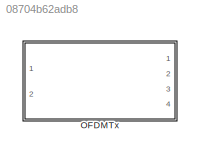
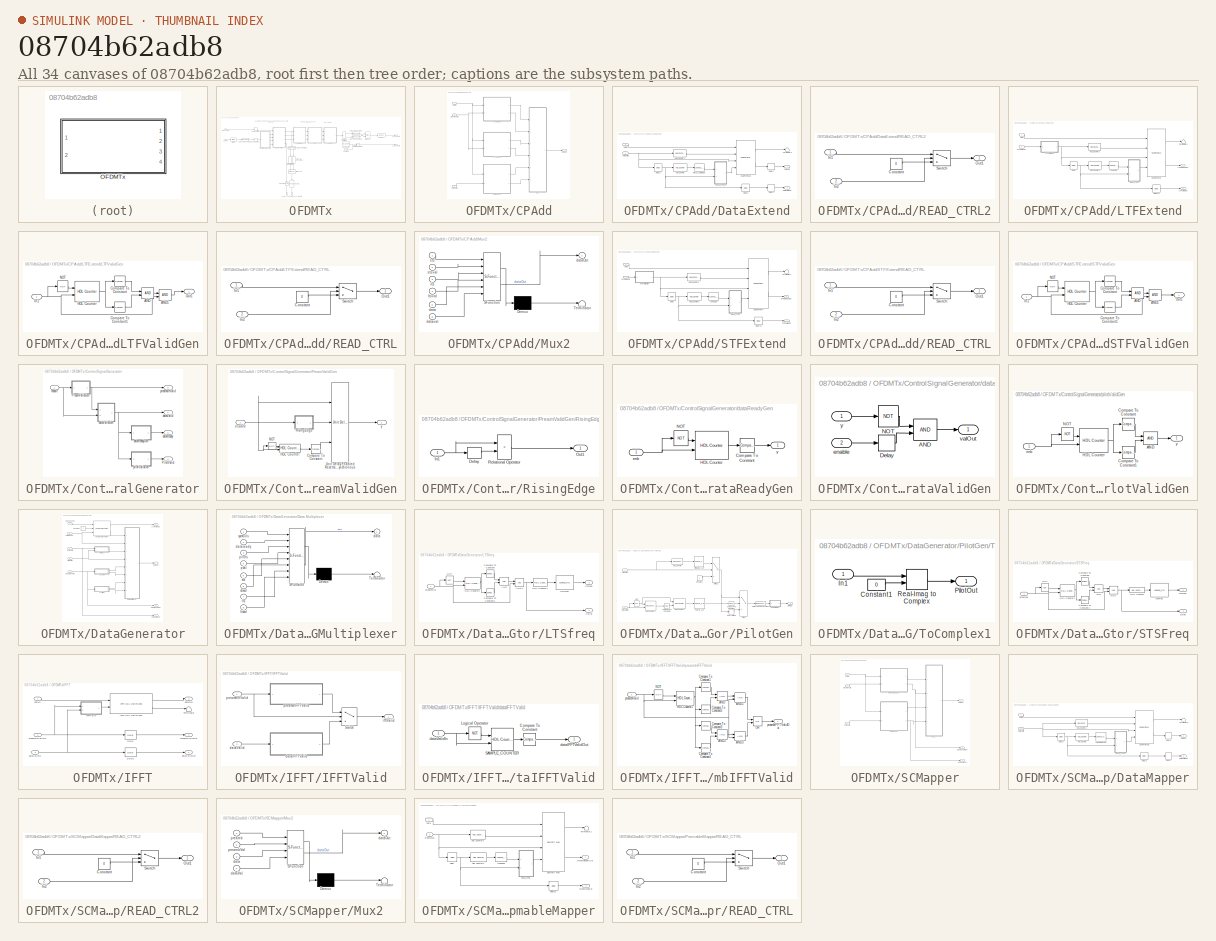
[diagram: thumbnail index - all 34 canvases of the model, root first then tree order]
MODEL slx_08704b62adb8
KIND library
CONFIG AbsTol = auto
CONFIG EnableMultiTasking = off
CONFIG FixedStep = auto
CONFIG MaxStep = auto
CONFIG MinStep = auto
CONFIG RelTol = 1e-3
CONFIG SampleTimeConstraint = Unconstrained
CONFIG Solver = VariableStepAuto
CONFIG SolverName = VariableStepAuto
CONFIG StartTime = 0.0
CONFIG StopTime = 10.0
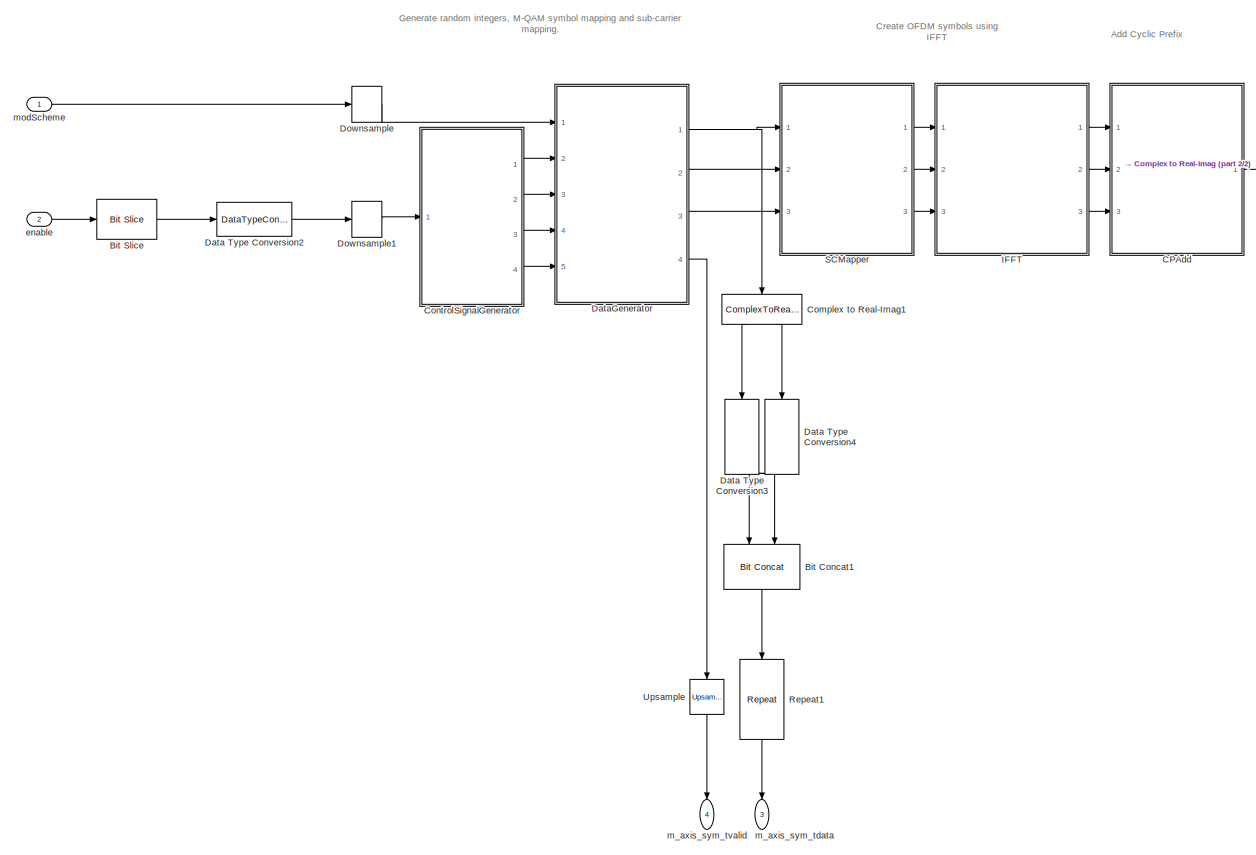
[diagram: OFDMTx - part 1/2, left side, full height]
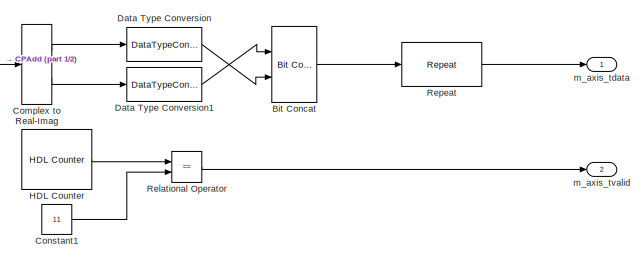
[diagram: OFDMTx - part 2/2, top right region]
BLOCK [SubSystem] OFDMTx
  Ports = [2, 4]
  RequestExecContextInheritance = off
  TreatAsAtomicUnit = on
BLOCK [Reference] OFDMTx/Bit Concat  REF=hdlsllib/Logic and Bit
Operations/Bit Concat
  Ports = [2, 1]
  SourceBlock = hdlsllib/Logic and Bit\nOperations/Bit Concat
  SourceProductBaseCode = SL
  SourceType = Bit Concat
BLOCK [Reference] OFDMTx/Bit Concat1  REF=hdlsllib/Logic and Bit
Operations/Bit Concat
  NameLocation = right
  Ports = [2, 1]
  SourceBlock = hdlsllib/Logic and Bit\nOperations/Bit Concat
  SourceProductBaseCode = SL
  SourceType = Bit Concat
BLOCK [Reference] OFDMTx/Bit Slice  REF=hdlsllib/Logic and Bit
Operations/Bit Slice
  Ports = [1, 1]
  SourceBlock = hdlsllib/Logic and Bit\nOperations/Bit Slice
  SourceProductBaseCode = SL
  SourceType = Bit Slice
BLOCK [SubSystem] OFDMTx/CPAdd
  Ports = [3, 1]
  RequestExecContextInheritance = off
BLOCK [SubSystem] OFDMTx/CPAdd/DataExtend
  Ports = [2, 2]
  RequestExecContextInheritance = off
BLOCK [Delay] OFDMTx/CPAdd/DataExtend/Delay1
  DelayLength = 80
  InitialCondition = 0
  InputPortMap = u0
  Ports = [1, 1]
  UseCircularBuffer = on
  UserDataPersistent = on
BLOCK [Delay] OFDMTx/CPAdd/DataExtend/Delay2
  DelayLength = 80
  InputPortMap = u0
  Ports = [1, 1]
BLOCK [Delay] OFDMTx/CPAdd/DataExtend/Delay3
  DelayLength = 1
  InitialCondition = 0
  InputPortMap = u0
  Ports = [1, 1]
  UseCircularBuffer = on
  UserDataPersistent = on
BLOCK [Delay] OFDMTx/CPAdd/DataExtend/Delay4
  DelayLength = 80
  InputPortMap = u0
  Ports = [1, 1]
BLOCK [Reference] OFDMTx/CPAdd/DataExtend/Dual Port RAM2  REF=hdlsllib/HDL RAMs/Dual Port RAM
  Ports = [4, 2]
  SourceBlock = hdlsllib/HDL RAMs/Dual Port RAM
  SourceProductBaseCode = SL
  SourceType = Dual-port RAM
BLOCK [Reference] OFDMTx/CPAdd/DataExtend/HDL Counter  REF=hdlsllib/Sources/HDL Counter
  Ports = [1, 1]
  SourceBlock = hdlsllib/Sources/HDL Counter
  SourceProductBaseCode = SL
  SourceType = HDL Counter
BLOCK [Reference] OFDMTx/CPAdd/DataExtend/HDL Counter1  REF=hdlsllib/Sources/HDL Counter
  Ports = [1, 1]
  SourceBlock = hdlsllib/Sources/HDL Counter
  SourceProductBaseCode = SL
  SourceType = HDL Counter
BLOCK [Lookup_n-D] OFDMTx/CPAdd/DataExtend/READ_ADDRESS
  BreakpointsForDimension1 = [0:159]
  BreakpointsForDimension1FirstPoint = 10
  BreakpointsForDimension1Spacing = 12
  BreakpointsForDimension2FirstPoint = 10
  BreakpointsForDimension2Spacing = 12
  DiagnosticForOutOfRangeInput = Error
  IndexSearchMethod = Evenly spaced points
  InternalRulePriority = Speed
  InterpMethod = Flat
  LookupTableObject = ''
  NumberOfTableDimensions = 1
  OutDataTypeStr = fixdt(0,8,0)
  Ports = [1, 1]
  RndMeth = Simplest
  Table = read_addr_cp
  TableDataTypeStr = fixdt(0,8,0)
BLOCK [SubSystem] OFDMTx/CPAdd/DataExtend/READ_CTRL2
  Ports = [2, 1]
  RequestExecContextInheritance = off
BLOCK [Constant] OFDMTx/CPAdd/DataExtend/READ_CTRL2/Constant
  OutDataTypeStr = fixdt(0,8,0)
  SampleTime = 1/fs
  Value = 0
BLOCK [Inport] OFDMTx/CPAdd/DataExtend/READ_CTRL2/In1
BLOCK [Inport] OFDMTx/CPAdd/DataExtend/READ_CTRL2/In2
  Port = 2
BLOCK [Outport] OFDMTx/CPAdd/DataExtend/READ_CTRL2/Out1
  VectorParamsAs1DForOutWhenUnconnected = off
BLOCK [Switch] OFDMTx/CPAdd/DataExtend/READ_CTRL2/Switch
  Criteria = u2 ~= 0
  InputSameDT = off
  SaturateOnIntegerOverflow = off
BLOCK [Terminator] OFDMTx/CPAdd/DataExtend/Terminator3
BLOCK [Inport] OFDMTx/CPAdd/DataExtend/dataIn
BLOCK [Outport] OFDMTx/CPAdd/DataExtend/dataOut
  VectorParamsAs1DForOutWhenUnconnected = off
BLOCK [Inport] OFDMTx/CPAdd/DataExtend/dataValid
  Port = 2
BLOCK [Outport] OFDMTx/CPAdd/DataExtend/dataValidOut
  Port = 2
  VectorParamsAs1DForOutWhenUnconnected = off
BLOCK [SubSystem] OFDMTx/CPAdd/LTFExtend
  Ports = [2, 2]
  RequestExecContextInheritance = off
BLOCK [Delay] OFDMTx/CPAdd/LTFExtend/Delay
  DelayLength = 160
  InitialCondition = 0
  InputPortMap = u0
  Ports = [1, 1]
  UseCircularBuffer = on
  UserDataPersistent = on
BLOCK [Delay] OFDMTx/CPAdd/LTFExtend/Delay12
  DelayLength = 1
  InitialCondition = 0
  InputPortMap = u0
  Ports = [1, 1]
  UseCircularBuffer = on
  UserDataPersistent = on
BLOCK [Reference] OFDMTx/CPAdd/LTFExtend/Dual Port RAM  REF=hdlsllib/HDL RAMs/Dual Port RAM
  Ports = [4, 2]
  SourceBlock = hdlsllib/HDL RAMs/Dual Port RAM
  SourceProductBaseCode = SL
  SourceType = Dual-port RAM
BLOCK [Reference] OFDMTx/CPAdd/LTFExtend/HDL Counter2  REF=hdlsllib/Sources/HDL Counter
  Ports = [1, 1]
  SourceBlock = hdlsllib/Sources/HDL Counter
  SourceProductBaseCode = SL
  SourceType = HDL Counter
BLOCK [Reference] OFDMTx/CPAdd/LTFExtend/HDL Counter3  REF=hdlsllib/Sources/HDL Counter
  Ports = [1, 1]
  SourceBlock = hdlsllib/Sources/HDL Counter
  SourceProductBaseCode = SL
  SourceType = HDL Counter
BLOCK [Outport] OFDMTx/CPAdd/LTFExtend/LTFExtendOut
  VectorParamsAs1DForOutWhenUnconnected = off
BLOCK [SubSystem] OFDMTx/CPAdd/LTFExtend/LTFValidGen
  Ports = [1, 1]
  RequestExecContextInheritance = off
BLOCK [Logic] OFDMTx/CPAdd/LTFExtend/LTFValidGen/AND
  AllPortsSameDT = off
  IconShape = distinctive
  OutDataTypeStr = boolean
  Ports = [2, 1]
BLOCK [Logic] OFDMTx/CPAdd/LTFExtend/LTFValidGen/AND1
  AllPortsSameDT = off
  IconShape = distinctive
  OutDataTypeStr = boolean
  Ports = [2, 1]
BLOCK [Reference] OFDMTx/CPAdd/LTFExtend/LTFValidGen/Compare To Constant  REF=simulink/Logic and Bit
Operations/Compare
To Constant
  Ports = [1, 1]
  SourceBlock = simulink/Logic and Bit\nOperations/Compare\nTo Constant
  SourceProductBaseCode = SL
  SourceType = Compare To Constant
BLOCK [Reference] OFDMTx/CPAdd/LTFExtend/LTFValidGen/Compare To Constant1  REF=simulink/Logic and Bit
Operations/Compare
To Constant
  Ports = [1, 1]
  SourceBlock = simulink/Logic and Bit\nOperations/Compare\nTo Constant
  SourceProductBaseCode = SL
  SourceType = Compare To Constant
BLOCK [Reference] OFDMTx/CPAdd/LTFExtend/LTFValidGen/HDL Counter  REF=hdlsllib/Sources/HDL Counter
  Ports = [2, 1]
  SourceBlock = hdlsllib/Sources/HDL Counter
  SourceProductBaseCode = SL
  SourceType = HDL Counter
BLOCK [Inport] OFDMTx/CPAdd/LTFExtend/LTFValidGen/In1
BLOCK [Logic] OFDMTx/CPAdd/LTFExtend/LTFValidGen/NOT
  AllPortsSameDT = off
  IconShape = distinctive
  Operator = NOT
  OutDataTypeStr = boolean
  Ports = [1, 1]
BLOCK [Outport] OFDMTx/CPAdd/LTFExtend/LTFValidGen/Out1
  VectorParamsAs1DForOutWhenUnconnected = off
BLOCK [Outport] OFDMTx/CPAdd/LTFExtend/LTFValidOut
  Port = 2
  VectorParamsAs1DForOutWhenUnconnected = off
BLOCK [SubSystem] OFDMTx/CPAdd/LTFExtend/READ_CTRL
  Ports = [2, 1]
  RequestExecContextInheritance = off
BLOCK [Constant] OFDMTx/CPAdd/LTFExtend/READ_CTRL/Constant
  OutDataTypeStr = fixdt(0,8,0)
  SampleTime = 1/fs
  Value = 0
BLOCK [Inport] OFDMTx/CPAdd/LTFExtend/READ_CTRL/In1
BLOCK [Inport] OFDMTx/CPAdd/LTFExtend/READ_CTRL/In2
  Port = 2
BLOCK [Outport] OFDMTx/CPAdd/LTFExtend/READ_CTRL/Out1
  VectorParamsAs1DForOutWhenUnconnected = off
BLOCK [Switch] OFDMTx/CPAdd/LTFExtend/READ_CTRL/Switch
  Criteria = u2 ~= 0
  InputSameDT = off
  SaturateOnIntegerOverflow = off
BLOCK [Terminator] OFDMTx/CPAdd/LTFExtend/Terminator1
BLOCK [Inport] OFDMTx/CPAdd/LTFExtend/data
BLOCK [Inport] OFDMTx/CPAdd/LTFExtend/preambVal
  Port = 2
BLOCK [Lookup_n-D] OFDMTx/CPAdd/LTFExtend/readaddr
  BreakpointsForDimension1 = 0:159
  BreakpointsForDimension1FirstPoint = 10
  BreakpointsForDimension1Spacing = 12
  BreakpointsForDimension2FirstPoint = 10
  BreakpointsForDimension2Spacing = 12
  DiagnosticForOutOfRangeInput = Error
  IndexSearchMethod = Evenly spaced points
  InternalRulePriority = Speed
  InterpMethod = Flat
  LookupTableObject = ''
  NumberOfTableDimensions = 1
  OutDataTypeStr = fixdt(0,8,0)
  Ports = [1, 1]
  RndMeth = Simplest
  Table = LTSread
  TableDataTypeStr = fixdt(0,8,0)
BLOCK [SubSystem] OFDMTx/CPAdd/Mux2
  ErrorFcn = Stateflow.Translate.translate
  PermitHierarchicalResolution = ExplicitOnly
  Ports = [6, 1]
  RequestExecContextInheritance = off
  SFBlockType = MATLAB Function
  TreatAsAtomicUnit = on
BLOCK [Demux] OFDMTx/CPAdd/Mux2/ Demux 
  Outputs = 1
  Ports = [1, 1]
BLOCK [S-Function] OFDMTx/CPAdd/Mux2/ SFunction 
  EnableBusSupport = off
  FunctionName = sf_sfun
  PortCounts = [6 2]
  Ports = [6, 2]
  SFcnIsStateOwnerBlock = off
  SFunctionDeploymentMode = off
  Tag = Stateflow S-Function 6
BLOCK [Terminator] OFDMTx/CPAdd/Mux2/ Terminator 
BLOCK [Inport] OFDMTx/CPAdd/Mux2/data
  Port = 5
BLOCK [Outport] OFDMTx/CPAdd/Mux2/dataOut
  VectorParamsAs1DForOutWhenUnconnected = off
BLOCK [Inport] OFDMTx/CPAdd/Mux2/dataval
  Port = 6
BLOCK [Inport] OFDMTx/CPAdd/Mux2/lts
  Port = 3
BLOCK [Inport] OFDMTx/CPAdd/Mux2/ltsval
  Port = 4
BLOCK [Inport] OFDMTx/CPAdd/Mux2/sts
BLOCK [Inport] OFDMTx/CPAdd/Mux2/stsval
  Port = 2
BLOCK [SubSystem] OFDMTx/CPAdd/STFExtend
  Ports = [2, 2]
  RequestExecContextInheritance = off
BLOCK [Delay] OFDMTx/CPAdd/STFExtend/Delay
  DelayLength = 160
  InitialCondition = 0
  InputPortMap = u0
  Ports = [1, 1]
  UseCircularBuffer = on
  UserDataPersistent = on
BLOCK [Delay] OFDMTx/CPAdd/STFExtend/Delay12
  DelayLength = 1
  InitialCondition = 0
  InputPortMap = u0
  Ports = [1, 1]
  UseCircularBuffer = on
  UserDataPersistent = on
BLOCK [Reference] OFDMTx/CPAdd/STFExtend/Dual Port RAM  REF=hdlsllib/HDL RAMs/Dual Port RAM
  Ports = [4, 2]
  SourceBlock = hdlsllib/HDL RAMs/Dual Port RAM
  SourceProductBaseCode = SL
  SourceType = Dual-port RAM
BLOCK [Reference] OFDMTx/CPAdd/STFExtend/HDL Counter2  REF=hdlsllib/Sources/HDL Counter
  Ports = [1, 1]
  SourceBlock = hdlsllib/Sources/HDL Counter
  SourceProductBaseCode = SL
  SourceType = HDL Counter
BLOCK [Reference] OFDMTx/CPAdd/STFExtend/HDL Counter3  REF=hdlsllib/Sources/HDL Counter
  Ports = [1, 1]
  SourceBlock = hdlsllib/Sources/HDL Counter
  SourceProductBaseCode = SL
  SourceType = HDL Counter
BLOCK [SubSystem] OFDMTx/CPAdd/STFExtend/READ_CTRL
  Ports = [2, 1]
  RequestExecContextInheritance = off
BLOCK [Constant] OFDMTx/CPAdd/STFExtend/READ_CTRL/Constant
  OutDataTypeStr = fixdt(0,8,0)
  SampleTime = 1/fs
  Value = 0
BLOCK [Inport] OFDMTx/CPAdd/STFExtend/READ_CTRL/In1
BLOCK [Inport] OFDMTx/CPAdd/STFExtend/READ_CTRL/In2
  Port = 2
BLOCK [Outport] OFDMTx/CPAdd/STFExtend/READ_CTRL/Out1
  VectorParamsAs1DForOutWhenUnconnected = off
BLOCK [Switch] OFDMTx/CPAdd/STFExtend/READ_CTRL/Switch
  Criteria = u2 ~= 0
  InputSameDT = off
  SaturateOnIntegerOverflow = off
BLOCK [Outport] OFDMTx/CPAdd/STFExtend/STFExtendOut
  VectorParamsAs1DForOutWhenUnconnected = off
BLOCK [SubSystem] OFDMTx/CPAdd/STFExtend/STFValidGen
  Ports = [1, 1]
  RequestExecContextInheritance = off
BLOCK [Logic] OFDMTx/CPAdd/STFExtend/STFValidGen/AND
  AllPortsSameDT = off
  IconShape = distinctive
  OutDataTypeStr = boolean
  Ports = [2, 1]
BLOCK [Logic] OFDMTx/CPAdd/STFExtend/STFValidGen/AND1
  AllPortsSameDT = off
  IconShape = distinctive
  OutDataTypeStr = boolean
  Ports = [2, 1]
BLOCK [Reference] OFDMTx/CPAdd/STFExtend/STFValidGen/Compare To Constant  REF=simulink/Logic and Bit
Operations/Compare
To Constant
  Ports = [1, 1]
  SourceBlock = simulink/Logic and Bit\nOperations/Compare\nTo Constant
  SourceProductBaseCode = SL
  SourceType = Compare To Constant
BLOCK [Reference] OFDMTx/CPAdd/STFExtend/STFValidGen/Compare To Constant1  REF=simulink/Logic and Bit
Operations/Compare
To Constant
  Ports = [1, 1]
  SourceBlock = simulink/Logic and Bit\nOperations/Compare\nTo Constant
  SourceProductBaseCode = SL
  SourceType = Compare To Constant
BLOCK [Reference] OFDMTx/CPAdd/STFExtend/STFValidGen/HDL Counter  REF=hdlsllib/Sources/HDL Counter
  Ports = [2, 1]
  SourceBlock = hdlsllib/Sources/HDL Counter
  SourceProductBaseCode = SL
  SourceType = HDL Counter
BLOCK [Inport] OFDMTx/CPAdd/STFExtend/STFValidGen/In1
BLOCK [Logic] OFDMTx/CPAdd/STFExtend/STFValidGen/NOT
  AllPortsSameDT = off
  IconShape = distinctive
  Operator = NOT
  OutDataTypeStr = boolean
  Ports = [1, 1]
BLOCK [Outport] OFDMTx/CPAdd/STFExtend/STFValidGen/Out1
  VectorParamsAs1DForOutWhenUnconnected = off
BLOCK [Outport] OFDMTx/CPAdd/STFExtend/STFValidOut
  Port = 2
  VectorParamsAs1DForOutWhenUnconnected = off
BLOCK [Terminator] OFDMTx/CPAdd/STFExtend/Terminator1
BLOCK [Inport] OFDMTx/CPAdd/STFExtend/data
BLOCK [Inport] OFDMTx/CPAdd/STFExtend/preambVal
  Port = 2
BLOCK [Lookup_n-D] OFDMTx/CPAdd/STFExtend/readaddr
  BreakpointsForDimension1 = 0:159
  BreakpointsForDimension1FirstPoint = 10
  BreakpointsForDimension1Spacing = 12
  BreakpointsForDimension2FirstPoint = 10
  BreakpointsForDimension2Spacing = 12
  DiagnosticForOutOfRangeInput = Error
  IndexSearchMethod = Evenly spaced points
  InternalRulePriority = Speed
  InterpMethod = Flat
  LookupTableObject = ''
  NumberOfTableDimensions = 1
  OutDataTypeStr = fixdt(0,8,0)
  Ports = [1, 1]
  RndMeth = Simplest
  Table = STSread
  TableDataTypeStr = fixdt(0,8,0)
BLOCK [Inport] OFDMTx/CPAdd/dataIn
BLOCK [Outport] OFDMTx/CPAdd/dataOut
  VectorParamsAs1DForOutWhenUnconnected = off
BLOCK [Inport] OFDMTx/CPAdd/dataValid
  Port = 3
BLOCK [Inport] OFDMTx/CPAdd/preambValid
  Port = 2
BLOCK [ComplexToRealImag] OFDMTx/Complex to Real-Imag
  Ports = [1, 2]
BLOCK [ComplexToRealImag] OFDMTx/Complex to Real-Imag1
  NameLocation = right
  Ports = [1, 2]
BLOCK [Constant] OFDMTx/Constant1
  OutDataTypeStr = uint16
  SampleTime = 1/(fs*12)
  Value = 11
BLOCK [SubSystem] OFDMTx/ControlSignalGenerator
  Ports = [1, 4]
  RequestExecContextInheritance = off
BLOCK [Outport] OFDMTx/ControlSignalGenerator/PilotValid
  Port = 4
BLOCK [SubSystem] OFDMTx/ControlSignalGenerator/PreamValidGen
  Ports = [1, 1]
  RequestExecContextInheritance = off
BLOCK [Reference] OFDMTx/ControlSignalGenerator/PreamValidGen/Compare To Constant  REF=simulink/Logic and Bit
Operations/Compare
To Constant
  Ports = [1, 1]
  SourceBlock = simulink/Logic and Bit\nOperations/Compare\nTo Constant
  SourceProductBaseCode = SL
  SourceType = Compare To Constant
BLOCK [Reference] OFDMTx/ControlSignalGenerator/PreamValidGen/HDL Counter  REF=hdlsllib/Sources/HDL Counter
  Ports = [2, 1]
  SourceBlock = hdlsllib/Sources/HDL Counter
  SourceProductBaseCode = SL
  SourceType = HDL Counter
BLOCK [Logic] OFDMTx/ControlSignalGenerator/PreamValidGen/NOT
  AllPortsSameDT = off
  IconShape = distinctive
  Operator = NOT
  OutDataTypeStr = boolean
  Ports = [1, 1]
BLOCK [SubSystem] OFDMTx/ControlSignalGenerator/PreamValidGen/RisingEdge
  Ports = [1, 1]
  RequestExecContextInheritance = off
BLOCK [Delay] OFDMTx/ControlSignalGenerator/PreamValidGen/RisingEdge/Delay
  DelayLength = 1
  InputPortMap = u0
  Ports = [1, 1]
BLOCK [Inport] OFDMTx/ControlSignalGenerator/PreamValidGen/RisingEdge/In1
BLOCK [Outport] OFDMTx/ControlSignalGenerator/PreamValidGen/RisingEdge/Out1
BLOCK [RelationalOperator] OFDMTx/ControlSignalGenerator/PreamValidGen/RisingEdge/Relational Operator
  InputSameDT = off
  Operator = >
  OutDataTypeStr = boolean
  Ports = [2, 1]
BLOCK [Reference] OFDMTx/ControlSignalGenerator/PreamValidGen/Unit Delay Enabled Resettable Synchronous  REF=hdlsllib/Discrete/Unit Delay Enabled Resettable
Synchronous
  Ports = [3, 1]
  SourceBlock = hdlsllib/Discrete/Unit Delay Enabled Resettable\nSynchronous
  SourceProductBaseCode = SL
  SourceType = Unit Delay Enabled Resettable Synchronous
BLOCK [Inport] OFDMTx/ControlSignalGenerator/PreamValidGen/enable
BLOCK [Outport] OFDMTx/ControlSignalGenerator/PreamValidGen/y
  VectorParamsAs1DForOutWhenUnconnected = off
BLOCK [Outport] OFDMTx/ControlSignalGenerator/dataReady
  Port = 3
BLOCK [SubSystem] OFDMTx/ControlSignalGenerator/dataReadyGen
  Ports = [1, 1]
  RequestExecContextInheritance = off
BLOCK [Reference] OFDMTx/ControlSignalGenerator/dataReadyGen/Compare To Constant  REF=simulink/Logic and Bit
Operations/Compare
To Constant
  Ports = [1, 1]
  SourceBlock = simulink/Logic and Bit\nOperations/Compare\nTo Constant
  SourceProductBaseCode = SL
  SourceType = Compare To Constant
BLOCK [Reference] OFDMTx/ControlSignalGenerator/dataReadyGen/HDL Counter  REF=hdlsllib/Sources/HDL Counter
  Ports = [2, 1]
  SourceBlock = hdlsllib/Sources/HDL Counter
  SourceProductBaseCode = SL
  SourceType = HDL Counter
BLOCK [Logic] OFDMTx/ControlSignalGenerator/dataReadyGen/NOT
  AllPortsSameDT = off
  IconShape = distinctive
  Operator = NOT
  OutDataTypeStr = boolean
  Ports = [1, 1]
BLOCK [Inport] OFDMTx/ControlSignalGenerator/dataReadyGen/enb
BLOCK [Outport] OFDMTx/ControlSignalGenerator/dataReadyGen/y
BLOCK [Outport] OFDMTx/ControlSignalGenerator/dataValid
BLOCK [SubSystem] OFDMTx/ControlSignalGenerator/dataValidGen
  Ports = [2, 1]
  RequestExecContextInheritance = off
BLOCK [Logic] OFDMTx/ControlSignalGenerator/dataValidGen/AND
  AllPortsSameDT = off
  IconShape = distinctive
  OutDataTypeStr = boolean
  Ports = [2, 1]
BLOCK [Delay] OFDMTx/ControlSignalGenerator/dataValidGen/Delay
  DelayLength = 1
  InputPortMap = u0
  Ports = [1, 1]
BLOCK [Logic] OFDMTx/ControlSignalGenerator/dataValidGen/NOT
  AllPortsSameDT = off
  IconShape = distinctive
  Operator = NOT
  OutDataTypeStr = boolean
  Ports = [1, 1]
BLOCK [Inport] OFDMTx/ControlSignalGenerator/dataValidGen/enable
  Port = 2
BLOCK [Outport] OFDMTx/ControlSignalGenerator/dataValidGen/valOut
BLOCK [Inport] OFDMTx/ControlSignalGenerator/dataValidGen/y
BLOCK [Inport] OFDMTx/ControlSignalGenerator/enable
BLOCK [SubSystem] OFDMTx/ControlSignalGenerator/pilotValidGen
  Ports = [1, 1]
  RequestExecContextInheritance = off
BLOCK [Logic] OFDMTx/ControlSignalGenerator/pilotValidGen/AND
  AllPortsSameDT = off
  IconShape = distinctive
  OutDataTypeStr = boolean
  Ports = [2, 1]
BLOCK [Reference] OFDMTx/ControlSignalGenerator/pilotValidGen/Compare To Constant  REF=simulink/Logic and Bit
Operations/Compare
To Constant
  Ports = [1, 1]
  SourceBlock = simulink/Logic and Bit\nOperations/Compare\nTo Constant
  SourceProductBaseCode = SL
  SourceType = Compare To Constant
BLOCK [Reference] OFDMTx/ControlSignalGenerator/pilotValidGen/Compare To Constant1  REF=simulink/Logic and Bit
Operations/Compare
To Constant
  Ports = [1, 1]
  SourceBlock = simulink/Logic and Bit\nOperations/Compare\nTo Constant
  SourceProductBaseCode = SL
  SourceType = Compare To Constant
BLOCK [Reference] OFDMTx/ControlSignalGenerator/pilotValidGen/HDL Counter  REF=hdlsllib/Sources/HDL Counter
  Ports = [2, 1]
  SourceBlock = hdlsllib/Sources/HDL Counter
  SourceProductBaseCode = SL
  SourceType = HDL Counter
BLOCK [Logic] OFDMTx/ControlSignalGenerator/pilotValidGen/NOT
  AllPortsSameDT = off
  IconShape = distinctive
  Operator = NOT
  OutDataTypeStr = boolean
  Ports = [1, 1]
BLOCK [Inport] OFDMTx/ControlSignalGenerator/pilotValidGen/enb
BLOCK [Outport] OFDMTx/ControlSignalGenerator/pilotValidGen/y
BLOCK [Outport] OFDMTx/ControlSignalGenerator/preambleValid
  Port = 2
BLOCK [DataTypeConversion] OFDMTx/Data Type Conversion
  ConvertRealWorld = Stored Integer (SI)
  OutDataTypeStr = uint16
  RndMeth = Floor
  SaturateOnIntegerOverflow = off
BLOCK [DataTypeConversion] OFDMTx/Data Type Conversion1
  ConvertRealWorld = Stored Integer (SI)
  OutDataTypeStr = uint16
  RndMeth = Floor
  SaturateOnIntegerOverflow = off
BLOCK [DataTypeConversion] OFDMTx/Data Type Conversion2
  ConvertRealWorld = Stored Integer (SI)
  OutDataTypeStr = boolean
  RndMeth = Floor
  SaturateOnIntegerOverflow = off
BLOCK [DataTypeConversion] OFDMTx/Data Type Conversion3
  ConvertRealWorld = Stored Integer (SI)
  NameLocation = right
  OutDataTypeStr = uint16
  RndMeth = Floor
  SaturateOnIntegerOverflow = off
BLOCK [DataTypeConversion] OFDMTx/Data Type Conversion4
  ConvertRealWorld = Stored Integer (SI)
  NameLocation = right
  OutDataTypeStr = uint16
  RndMeth = Floor
  SaturateOnIntegerOverflow = off
BLOCK [SubSystem] OFDMTx/DataGenerator
  Ports = [5, 4]
  RequestExecContextInheritance = off
BLOCK [Constant] OFDMTx/DataGenerator/Constant
  OutDataTypeStr = boolean
  SampleTime = 1/fs
  Value = 0
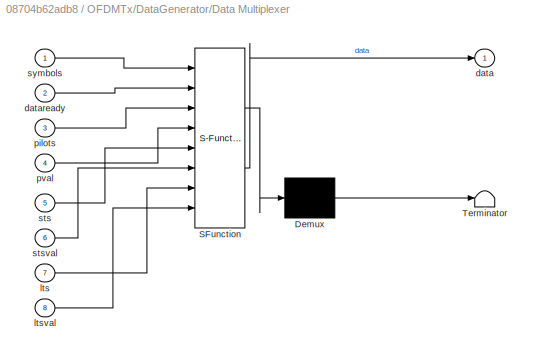
BLOCK [SubSystem] OFDMTx/DataGenerator/Data Multiplexer
  ErrorFcn = Stateflow.Translate.translate
  PermitHierarchicalResolution = ExplicitOnly
  Ports = [8, 1]
  RequestExecContextInheritance = off
  SFBlockType = MATLAB Function
  TreatAsAtomicUnit = on
BLOCK [Demux] OFDMTx/DataGenerator/Data Multiplexer/ Demux 
  Outputs = 1
  Ports = [1, 1]
BLOCK [S-Function] OFDMTx/DataGenerator/Data Multiplexer/ SFunction 
  EnableBusSupport = off
  FunctionName = sf_sfun
  PortCounts = [8 2]
  Ports = [8, 2]
  SFcnIsStateOwnerBlock = off
  SFunctionDeploymentMode = off
  Tag = Stateflow S-Function 2
BLOCK [Terminator] OFDMTx/DataGenerator/Data Multiplexer/ Terminator 
BLOCK [Outport] OFDMTx/DataGenerator/Data Multiplexer/data
  VectorParamsAs1DForOutWhenUnconnected = off
BLOCK [Inport] OFDMTx/DataGenerator/Data Multiplexer/dataready
  Port = 2
BLOCK [Inport] OFDMTx/DataGenerator/Data Multiplexer/lts
  Port = 7
BLOCK [Inport] OFDMTx/DataGenerator/Data Multiplexer/ltsval
  Port = 8
BLOCK [Inport] OFDMTx/DataGenerator/Data Multiplexer/pilots
  Port = 3
BLOCK [Inport] OFDMTx/DataGenerator/Data Multiplexer/pval
  Port = 4
BLOCK [Inport] OFDMTx/DataGenerator/Data Multiplexer/sts
  Port = 5
BLOCK [Inport] OFDMTx/DataGenerator/Data Multiplexer/stsval
  Port = 6
BLOCK [Inport] OFDMTx/DataGenerator/Data Multiplexer/symbols
BLOCK [SubSystem] OFDMTx/DataGenerator/LTSfreq
  Ports = [1, 2]
  RequestExecContextInheritance = off
BLOCK [Logic] OFDMTx/DataGenerator/LTSfreq/AND
  AllPortsSameDT = off
  IconShape = distinctive
  OutDataTypeStr = boolean
  Ports = [2, 1]
BLOCK [Logic] OFDMTx/DataGenerator/LTSfreq/AND1
  AllPortsSameDT = off
  IconShape = distinctive
  OutDataTypeStr = boolean
  Ports = [2, 1]
BLOCK [Reference] OFDMTx/DataGenerator/LTSfreq/Compare To Constant  REF=simulink/Logic and Bit
Operations/Compare
To Constant
  Ports = [1, 1]
  SourceBlock = simulink/Logic and Bit\nOperations/Compare\nTo Constant
  SourceProductBaseCode = SL
  SourceType = Compare To Constant
BLOCK [Reference] OFDMTx/DataGenerator/LTSfreq/Compare To Constant1  REF=simulink/Logic and Bit
Operations/Compare
To Constant
  Ports = [1, 1]
  SourceBlock = simulink/Logic and Bit\nOperations/Compare\nTo Constant
  SourceProductBaseCode = SL
  SourceType = Compare To Constant
BLOCK [Reference] OFDMTx/DataGenerator/LTSfreq/HDL Counter1  REF=hdlsllib/Sources/HDL Counter
  Ports = [2, 1]
  SourceBlock = hdlsllib/Sources/HDL Counter
  SourceProductBaseCode = SL
  SourceType = HDL Counter
BLOCK [Reference] OFDMTx/DataGenerator/LTSfreq/HDL Counter4  REF=hdlsllib/Sources/HDL Counter
  Ports = [1, 1]
  SourceBlock = hdlsllib/Sources/HDL Counter
  SourceProductBaseCode = SL
  SourceType = HDL Counter
BLOCK [Lookup_n-D] OFDMTx/DataGenerator/LTSfreq/LTSFreq
  BreakpointsForDimension1 = 0:63
  BreakpointsForDimension1FirstPoint = 10
  BreakpointsForDimension1Spacing = 12
  BreakpointsForDimension2FirstPoint = 10
  BreakpointsForDimension2Spacing = 12
  DiagnosticForOutOfRangeInput = Error
  IndexSearchMethod = Evenly spaced points
  InternalRulePriority = Speed
  InterpMethod = Flat
  LookupTableObject = ''
  NumberOfTableDimensions = 1
  OutDataTypeStr = fixdt(1,16,14)
  Ports = [1, 1]
  RndMeth = Simplest
  Table = LTSfreq
  TableDataTypeStr = fixdt(1,16,14)
BLOCK [Logic] OFDMTx/DataGenerator/LTSfreq/NOT
  AllPortsSameDT = off
  IconShape = distinctive
  Operator = NOT
  OutDataTypeStr = boolean
  Ports = [1, 1]
BLOCK [Outport] OFDMTx/DataGenerator/LTSfreq/ltsFreq
  VectorParamsAs1DForOutWhenUnconnected = off
BLOCK [Outport] OFDMTx/DataGenerator/LTSfreq/ltsVal
  Port = 2
  VectorParamsAs1DForOutWhenUnconnected = off
BLOCK [Inport] OFDMTx/DataGenerator/LTSfreq/preambVal
BLOCK [SubSystem] OFDMTx/DataGenerator/PilotGen
  Ports = [2, 1]
  RequestExecContextInheritance = off
BLOCK [Reference] OFDMTx/DataGenerator/PilotGen/Compare To Constant  REF=simulink/Logic and Bit
Operations/Compare
To Constant
  Ports = [1, 1]
  SourceBlock = simulink/Logic and Bit\nOperations/Compare\nTo Constant
  SourceProductBaseCode = SL
  SourceType = Compare To Constant
BLOCK [Reference] OFDMTx/DataGenerator/PilotGen/Compare To Constant1  REF=simulink/Logic and Bit
Operations/Compare
To Constant
  Ports = [1, 1]
  SourceBlock = simulink/Logic and Bit\nOperations/Compare\nTo Constant
  SourceProductBaseCode = SL
  SourceType = Compare To Constant
BLOCK [Constant] OFDMTx/DataGenerator/PilotGen/Constant
  OutDataTypeStr = fixdt(1,2,0)
  SampleTime = 1/fs
  Value = 0
BLOCK [DataTypeConversion] OFDMTx/DataGenerator/PilotGen/Data Type Conversion1
  OutDataTypeStr = fixdt(1,16,14)
  RndMeth = Floor
  SaturateOnIntegerOverflow = off
BLOCK [Reference] OFDMTx/DataGenerator/PilotGen/HDL Counter  REF=hdlsllib/Sources/HDL Counter
  Ports = [1, 1]
  SourceBlock = hdlsllib/Sources/HDL Counter
  SourceProductBaseCode = SL
  SourceType = HDL Counter
BLOCK [Reference] OFDMTx/DataGenerator/PilotGen/HDL Counter1  REF=hdlsllib/Sources/HDL Counter
  Ports = [2, 1]
  SourceBlock = hdlsllib/Sources/HDL Counter
  SourceProductBaseCode = SL
  SourceType = HDL Counter
BLOCK [Reference] OFDMTx/DataGenerator/PilotGen/HDL Counter2  REF=hdlsllib/Sources/HDL Counter
  Ports = [2, 1]
  SourceBlock = hdlsllib/Sources/HDL Counter
  SourceProductBaseCode = SL
  SourceType = HDL Counter
BLOCK [Logic] OFDMTx/DataGenerator/PilotGen/NOT
  AllPortsSameDT = off
  IconShape = distinctive
  Operator = NOT
  OutDataTypeStr = boolean
  Ports = [1, 1]
BLOCK [Lookup_n-D] OFDMTx/DataGenerator/PilotGen/PilotValue_LUT
  BreakpointsForDimension1 = [0:3]
  BreakpointsForDimension1FirstPoint = 10
  BreakpointsForDimension1Spacing = 12
  BreakpointsForDimension2FirstPoint = 10
  BreakpointsForDimension2Spacing = 12
  DiagnosticForOutOfRangeInput = Error
  IndexSearchMethod = Evenly spaced points
  InternalRulePriority = Speed
  InterpMethod = Flat
  LookupTableObject = ''
  NumberOfTableDimensions = 1
  OutDataTypeStr = fixdt(1,2,0)
  Ports = [1, 1]
  RndMeth = Simplest
  Table = [1 1 1 -1]
  TableDataTypeStr = fixdt(1,2,0)
BLOCK [Lookup_n-D] OFDMTx/DataGenerator/PilotGen/Polarity_LUT
  BreakpointsForDimension1 = [0:126]
  BreakpointsForDimension1FirstPoint = 10
  BreakpointsForDimension1Spacing = 12
  BreakpointsForDimension2FirstPoint = 10
  BreakpointsForDimension2Spacing = 12
  DiagnosticForOutOfRangeInput = Error
  IndexSearchMethod = Evenly spaced points
  InternalRulePriority = Speed
  InterpMethod = Flat
  LookupTableObject = ''
  NumberOfTableDimensions = 1
  OutDataTypeStr = fixdt(1,2,0)
  Ports = [1, 1]
  RndMeth = Simplest
  Table = pilot
  TableDataTypeStr = fixdt(1,2,0)
BLOCK [Switch] OFDMTx/DataGenerator/PilotGen/Switch
  Criteria = u2 ~= 0
  InputSameDT = off
  SaturateOnIntegerOverflow = off
BLOCK [Switch] OFDMTx/DataGenerator/PilotGen/Switch1
  Criteria = u2 ~= 0
  InputSameDT = off
  SaturateOnIntegerOverflow = off
BLOCK [SubSystem] OFDMTx/DataGenerator/PilotGen/ToComplex1
  Ports = [1, 1]
  RequestExecContextInheritance = off
BLOCK [Constant] OFDMTx/DataGenerator/PilotGen/ToComplex1/Constant1
  OutDataTypeStr = fixdt(1,16,14)
  SampleTime = 1/fs
  Value = 0
BLOCK [Inport] OFDMTx/DataGenerator/PilotGen/ToComplex1/In1
BLOCK [Outport] OFDMTx/DataGenerator/PilotGen/ToComplex1/PilotOut
  VectorParamsAs1DForOutWhenUnconnected = off
BLOCK [RealImagToComplex] OFDMTx/DataGenerator/PilotGen/ToComplex1/Real-Imag to Complex
  Ports = [2, 1]
BLOCK [UnaryMinus] OFDMTx/DataGenerator/PilotGen/Unary Minus
BLOCK [Inport] OFDMTx/DataGenerator/PilotGen/dataValidIn
BLOCK [Outport] OFDMTx/DataGenerator/PilotGen/pilotOut
  VectorParamsAs1DForOutWhenUnconnected = off
BLOCK [Inport] OFDMTx/DataGenerator/PilotGen/pilotValidIn
  Port = 2
BLOCK [Reference] OFDMTx/DataGenerator/RF Signal Generator  REF=lib_rfsignalgenerator/RF Signal Generator  (lib defined in slx_814b9a14ef67)
  Ports = [3, 2]
  SourceBlock = lib_rfsignalgenerator/RF Signal Generator
  SourceType = SubSystem
BLOCK [SubSystem] OFDMTx/DataGenerator/STSFreq
  Ports = [1, 2]
  RequestExecContextInheritance = off
BLOCK [Logic] OFDMTx/DataGenerator/STSFreq/AND
  AllPortsSameDT = off
  IconShape = distinctive
  OutDataTypeStr = boolean
  Ports = [2, 1]
BLOCK [Logic] OFDMTx/DataGenerator/STSFreq/AND1
  AllPortsSameDT = off
  IconShape = distinctive
  OutDataTypeStr = boolean
  Ports = [2, 1]
BLOCK [Reference] OFDMTx/DataGenerator/STSFreq/Compare To Constant  REF=simulink/Logic and Bit
Operations/Compare
To Constant
  Ports = [1, 1]
  SourceBlock = simulink/Logic and Bit\nOperations/Compare\nTo Constant
  SourceProductBaseCode = SL
  SourceType = Compare To Constant
BLOCK [Reference] OFDMTx/DataGenerator/STSFreq/Compare To Constant1  REF=simulink/Logic and Bit
Operations/Compare
To Constant
  Ports = [1, 1]
  SourceBlock = simulink/Logic and Bit\nOperations/Compare\nTo Constant
  SourceProductBaseCode = SL
  SourceType = Compare To Constant
BLOCK [Reference] OFDMTx/DataGenerator/STSFreq/HDL Counter  REF=hdlsllib/Sources/HDL Counter
  Ports = [1, 1]
  SourceBlock = hdlsllib/Sources/HDL Counter
  SourceProductBaseCode = SL
  SourceType = HDL Counter
BLOCK [Reference] OFDMTx/DataGenerator/STSFreq/HDL Counter1  REF=hdlsllib/Sources/HDL Counter
  Ports = [2, 1]
  SourceBlock = hdlsllib/Sources/HDL Counter
  SourceProductBaseCode = SL
  SourceType = HDL Counter
BLOCK [Logic] OFDMTx/DataGenerator/STSFreq/NOT
  AllPortsSameDT = off
  IconShape = distinctive
  Operator = NOT
  OutDataTypeStr = boolean
  Ports = [1, 1]
BLOCK [Lookup_n-D] OFDMTx/DataGenerator/STSFreq/STSFreq
  BreakpointsForDimension1 = [0:63]
  BreakpointsForDimension1FirstPoint = 10
  BreakpointsForDimension1Spacing = 12
  BreakpointsForDimension2FirstPoint = 10
  BreakpointsForDimension2Spacing = 12
  DiagnosticForOutOfRangeInput = Error
  IndexSearchMethod = Evenly spaced points
  InternalRulePriority = Speed
  InterpMethod = Flat
  LookupTableObject = ''
  NumberOfTableDimensions = 1
  OutDataTypeStr = fixdt(1,16,14)
  Ports = [1, 1]
  RndMeth = Simplest
  Table = STSfreq
  TableDataTypeStr = fixdt(1,16,14)
BLOCK [Inport] OFDMTx/DataGenerator/STSFreq/preamVal
BLOCK [Outport] OFDMTx/DataGenerator/STSFreq/stsFreq
  VectorParamsAs1DForOutWhenUnconnected = off
BLOCK [Outport] OFDMTx/DataGenerator/STSFreq/stsVal
  Port = 2
  VectorParamsAs1DForOutWhenUnconnected = off
BLOCK [Outport] OFDMTx/DataGenerator/dataOut
  VectorParamsAs1DForOutWhenUnconnected = off
BLOCK [Inport] OFDMTx/DataGenerator/dataReady
  Port = 4
BLOCK [Inport] OFDMTx/DataGenerator/dataValid
  Port = 2
BLOCK [Outport] OFDMTx/DataGenerator/dataValidOut
  Port = 3
  VectorParamsAs1DForOutWhenUnconnected = off
BLOCK [Inport] OFDMTx/DataGenerator/modScheme
BLOCK [Inport] OFDMTx/DataGenerator/pilotValid
  Port = 5
BLOCK [Outport] OFDMTx/DataGenerator/preambValOut
  Port = 2
  VectorParamsAs1DForOutWhenUnconnected = off
BLOCK [Inport] OFDMTx/DataGenerator/preambleValid
  Port = 3
BLOCK [Outport] OFDMTx/DataGenerator/symValidOut
  Port = 4
  VectorParamsAs1DForOutWhenUnconnected = off
BLOCK [DownSample] OFDMTx/Downsample
  InputProcessing = Elements as channels (sample based)
  N = 12
  RateOptions = Allow multirate processing
BLOCK [DownSample] OFDMTx/Downsample1
  InputProcessing = Elements as channels (sample based)
  N = 12
  RateOptions = Allow multirate processing
BLOCK [Reference] OFDMTx/HDL Counter  REF=hdlsllib/Sources/HDL Counter
  Ports = [0, 1]
  SourceBlock = hdlsllib/Sources/HDL Counter
  SourceProductBaseCode = SL
  SourceType = HDL Counter
BLOCK [SubSystem] OFDMTx/IFFT
  Ports = [3, 3]
  RequestExecContextInheritance = off
BLOCK [Delay] OFDMTx/IFFT/Delay
  DelayLength = 173
  InitialCondition = 0
  InputPortMap = u0
  Ports = [1, 1]
  UseCircularBuffer = on
  UserDataPersistent = on
BLOCK [Delay] OFDMTx/IFFT/Delay1
  DelayLength = 173
  InitialCondition = 0
  InputPortMap = u0
  Ports = [1, 1]
  UseCircularBuffer = on
  UserDataPersistent = on
BLOCK [Reference] OFDMTx/IFFT/IFFT HDL Optimized  REF=dsphdlxfrm/IFFT
HDL Optimized
  Ports = [2, 2]
  SourceBlock = dsphdlxfrm/IFFT\nHDL Optimized
  SourceProductBaseCode = DS
  SourceType = IFFT HDL Optimized
BLOCK [SubSystem] OFDMTx/IFFT/IFFTValid
  Ports = [2, 1]
  RequestExecContextInheritance = off
BLOCK [Switch] OFDMTx/IFFT/IFFTValid/Switch
  Criteria = u2 ~= 0
  InputSameDT = off
  SaturateOnIntegerOverflow = off
BLOCK [SubSystem] OFDMTx/IFFT/IFFTValid/dataIFFTValid
  Ports = [1, 1]
  RequestExecContextInheritance = off
BLOCK [Reference] OFDMTx/IFFT/IFFTValid/dataIFFTValid/Compare To Constant  REF=simulink/Logic and Bit
Operations/Compare
To Constant
  Ports = [1, 1]
  SourceBlock = simulink/Logic and Bit\nOperations/Compare\nTo Constant
  SourceProductBaseCode = SL
  SourceType = Compare To Constant
BLOCK [Logic] OFDMTx/IFFT/IFFTValid/dataIFFTValid/Logical Operator
  AllPortsSameDT = off
  IconShape = distinctive
  Operator = NOT
  OutDataTypeStr = boolean
  Ports = [1, 1]
BLOCK [Reference] OFDMTx/IFFT/IFFTValid/dataIFFTValid/SAMPLE_COUNTER  REF=hdlsllib/Sources/HDL Counter
  Ports = [2, 1]
  SourceBlock = hdlsllib/Sources/HDL Counter
  SourceProductBaseCode = SL
  SourceType = HDL Counter
BLOCK [Outport] OFDMTx/IFFT/IFFTValid/dataIFFTValid/dataIFFTValidOut
  VectorParamsAs1DForOutWhenUnconnected = off
BLOCK [Inport] OFDMTx/IFFT/IFFTValid/dataIFFTValid/dataValidIn
BLOCK [Inport] OFDMTx/IFFT/IFFTValid/dataValid
  Port = 2
BLOCK [Outport] OFDMTx/IFFT/IFFTValid/ifftValid
  VectorParamsAs1DForOutWhenUnconnected = off
BLOCK [SubSystem] OFDMTx/IFFT/IFFTValid/preambIFFTValid
  Ports = [1, 1]
  RequestExecContextInheritance = off
BLOCK [Logic] OFDMTx/IFFT/IFFTValid/preambIFFTValid/AND
  AllPortsSameDT = off
  IconShape = distinctive
  OutDataTypeStr = boolean
  Ports = [2, 1]
BLOCK [Logic] OFDMTx/IFFT/IFFTValid/preambIFFTValid/AND1
  AllPortsSameDT = off
  IconShape = distinctive
  OutDataTypeStr = boolean
  Ports = [2, 1]
BLOCK [Logic] OFDMTx/IFFT/IFFTValid/preambIFFTValid/AND2
  AllPortsSameDT = off
  IconShape = distinctive
  OutDataTypeStr = boolean
  Ports = [2, 1]
BLOCK [Logic] OFDMTx/IFFT/IFFTValid/preambIFFTValid/AND3
  AllPortsSameDT = off
  IconShape = distinctive
  OutDataTypeStr = boolean
  Ports = [2, 1]
BLOCK [Reference] OFDMTx/IFFT/IFFTValid/preambIFFTValid/Compare To Constant1  REF=simulink/Logic and Bit
Operations/Compare
To Constant
  Ports = [1, 1]
  SourceBlock = simulink/Logic and Bit\nOperations/Compare\nTo Constant
  SourceProductBaseCode = SL
  SourceType = Compare To Constant
BLOCK [Reference] OFDMTx/IFFT/IFFTValid/preambIFFTValid/Compare To Constant2  REF=simulink/Logic and Bit
Operations/Compare
To Constant
  Ports = [1, 1]
  SourceBlock = simulink/Logic and Bit\nOperations/Compare\nTo Constant
  SourceProductBaseCode = SL
  SourceType = Compare To Constant
BLOCK [Reference] OFDMTx/IFFT/IFFTValid/preambIFFTValid/Compare To Constant3  REF=simulink/Logic and Bit
Operations/Compare
To Constant
  Ports = [1, 1]
  SourceBlock = simulink/Logic and Bit\nOperations/Compare\nTo Constant
  SourceProductBaseCode = SL
  SourceType = Compare To Constant
BLOCK [Reference] OFDMTx/IFFT/IFFTValid/preambIFFTValid/Compare To Constant4  REF=simulink/Logic and Bit
Operations/Compare
To Constant
  Ports = [1, 1]
  SourceBlock = simulink/Logic and Bit\nOperations/Compare\nTo Constant
  SourceProductBaseCode = SL
  SourceType = Compare To Constant
BLOCK [Reference] OFDMTx/IFFT/IFFTValid/preambIFFTValid/HDL Counter1  REF=hdlsllib/Sources/HDL Counter
  Ports = [2, 1]
  SourceBlock = hdlsllib/Sources/HDL Counter
  SourceProductBaseCode = SL
  SourceType = HDL Counter
BLOCK [Logic] OFDMTx/IFFT/IFFTValid/preambIFFTValid/NOT
  AllPortsSameDT = off
  IconShape = distinctive
  Operator = NOT
  OutDataTypeStr = boolean
  Ports = [1, 1]
BLOCK [Logic] OFDMTx/IFFT/IFFTValid/preambIFFTValid/OR
  AllPortsSameDT = off
  IconShape = distinctive
  Operator = OR
  OutDataTypeStr = boolean
  Ports = [2, 1]
BLOCK [Outport] OFDMTx/IFFT/IFFTValid/preambIFFTValid/preambIFFTValidOut
  VectorParamsAs1DForOutWhenUnconnected = off
BLOCK [Inport] OFDMTx/IFFT/IFFTValid/preambIFFTValid/preambValid
BLOCK [Inport] OFDMTx/IFFT/IFFTValid/preambleValid
BLOCK [Terminator] OFDMTx/IFFT/Terminator
BLOCK [Inport] OFDMTx/IFFT/dataIn
BLOCK [Outport] OFDMTx/IFFT/dataOut
  VectorParamsAs1DForOutWhenUnconnected = off
BLOCK [Inport] OFDMTx/IFFT/dataValidIn 
  Port = 3
BLOCK [Outport] OFDMTx/IFFT/dataValidOut
  Port = 3
  VectorParamsAs1DForOutWhenUnconnected = off
BLOCK [Outport] OFDMTx/IFFT/preambValidOut
  Port = 2
  VectorParamsAs1DForOutWhenUnconnected = off
BLOCK [Inport] OFDMTx/IFFT/preambleValidIn
  Port = 2
BLOCK [RelationalOperator] OFDMTx/Relational Operator
  InputSameDT = off
  Operator = ==
  OutDataTypeStr = boolean
  Ports = [2, 1]
  RndMeth = Simplest
BLOCK [Reference] OFDMTx/Repeat  REF=dspsigops/Repeat
  Ports = [1, 1]
  SourceBlock = dspsigops/Repeat
  SourceProductBaseCode = DS
  SourceType = Repeat
  UserDataPersistent = on
BLOCK [Reference] OFDMTx/Repeat1  REF=dspsigops/Repeat
  NameLocation = left
  Ports = [1, 1]
  SourceBlock = dspsigops/Repeat
  SourceProductBaseCode = DS
  SourceType = Repeat
  UserDataPersistent = on
BLOCK [SubSystem] OFDMTx/SCMapper
  Ports = [3, 3]
  RequestExecContextInheritance = off
BLOCK [SubSystem] OFDMTx/SCMapper/DataMapper
  Ports = [2, 2]
  RequestExecContextInheritance = off
BLOCK [Delay] OFDMTx/SCMapper/DataMapper/Delay1
  DelayLength = 80
  InitialCondition = 0
  InputPortMap = u0
  Ports = [1, 1]
  UseCircularBuffer = on
  UserDataPersistent = on
BLOCK [Delay] OFDMTx/SCMapper/DataMapper/Delay2
  DelayLength = 80
  InputPortMap = u0
  Ports = [1, 1]
BLOCK [Delay] OFDMTx/SCMapper/DataMapper/Delay3
  DelayLength = 1
  InitialCondition = 0
  InputPortMap = u0
  Ports = [1, 1]
  UseCircularBuffer = on
  UserDataPersistent = on
BLOCK [Delay] OFDMTx/SCMapper/DataMapper/Delay4
  DelayLength = 80
  InputPortMap = u0
  Ports = [1, 1]
BLOCK [Reference] OFDMTx/SCMapper/DataMapper/Dual Port RAM2  REF=hdlsllib/HDL RAMs/Dual Port RAM
  Ports = [4, 2]
  SourceBlock = hdlsllib/HDL RAMs/Dual Port RAM
  SourceProductBaseCode = SL
  SourceType = Dual-port RAM
BLOCK [Reference] OFDMTx/SCMapper/DataMapper/HDL Counter  REF=hdlsllib/Sources/HDL Counter
  Ports = [1, 1]
  SourceBlock = hdlsllib/Sources/HDL Counter
  SourceProductBaseCode = SL
  SourceType = HDL Counter
BLOCK [Reference] OFDMTx/SCMapper/DataMapper/HDL Counter1  REF=hdlsllib/Sources/HDL Counter
  Ports = [1, 1]
  SourceBlock = hdlsllib/Sources/HDL Counter
  SourceProductBaseCode = SL
  SourceType = HDL Counter
BLOCK [SubSystem] OFDMTx/SCMapper/DataMapper/READ_CTRL2
  Ports = [2, 1]
  RequestExecContextInheritance = off
BLOCK [Constant] OFDMTx/SCMapper/DataMapper/READ_CTRL2/Constant
  OutDataTypeStr = fixdt(0,8,0)
  SampleTime = 1/fs
  Value = 0
BLOCK [Inport] OFDMTx/SCMapper/DataMapper/READ_CTRL2/In1
BLOCK [Inport] OFDMTx/SCMapper/DataMapper/READ_CTRL2/In2
  Port = 2
BLOCK [Outport] OFDMTx/SCMapper/DataMapper/READ_CTRL2/Out1
  VectorParamsAs1DForOutWhenUnconnected = off
BLOCK [Switch] OFDMTx/SCMapper/DataMapper/READ_CTRL2/Switch
  Criteria = u2 ~= 0
  InputSameDT = off
  SaturateOnIntegerOverflow = off
BLOCK [Terminator] OFDMTx/SCMapper/DataMapper/Terminator3
BLOCK [Inport] OFDMTx/SCMapper/DataMapper/dataIn
BLOCK [Outport] OFDMTx/SCMapper/DataMapper/dataOut
  VectorParamsAs1DForOutWhenUnconnected = off
BLOCK [Inport] OFDMTx/SCMapper/DataMapper/dataValid
  Port = 2
BLOCK [Outport] OFDMTx/SCMapper/DataMapper/dataValidOut
  Port = 2
  VectorParamsAs1DForOutWhenUnconnected = off
BLOCK [Lookup_n-D] OFDMTx/SCMapper/DataMapper/readaddress
  BreakpointsForDimension1 = [0:159]
  BreakpointsForDimension1FirstPoint = 10
  BreakpointsForDimension1Spacing = 12
  BreakpointsForDimension2FirstPoint = 10
  BreakpointsForDimension2Spacing = 12
  DiagnosticForOutOfRangeInput = Error
  IndexSearchMethod = Evenly spaced points
  InternalRulePriority = Speed
  InterpMethod = Flat
  LookupTableObject = ''
  NumberOfTableDimensions = 1
  OutDataTypeStr = fixdt(0,8,0)
  Ports = [1, 1]
  RndMeth = Simplest
  Table = read_addr_data
  TableDataTypeStr = fixdt(0,8,0)
BLOCK [SubSystem] OFDMTx/SCMapper/Mux2
  ErrorFcn = Stateflow.Translate.translate
  PermitHierarchicalResolution = ExplicitOnly
  Ports = [4, 1]
  RequestExecContextInheritance = off
  SFBlockType = MATLAB Function
  TreatAsAtomicUnit = on
BLOCK [Demux] OFDMTx/SCMapper/Mux2/ Demux 
  Outputs = 1
  Ports = [1, 1]
BLOCK [S-Function] OFDMTx/SCMapper/Mux2/ SFunction 
  EnableBusSupport = off
  FunctionName = sf_sfun
  PortCounts = [4 2]
  Ports = [4, 2]
  SFcnIsStateOwnerBlock = off
  SFunctionDeploymentMode = off
  Tag = Stateflow S-Function 7
BLOCK [Terminator] OFDMTx/SCMapper/Mux2/ Terminator 
BLOCK [Inport] OFDMTx/SCMapper/Mux2/data
  Port = 3
BLOCK [Outport] OFDMTx/SCMapper/Mux2/dataOut
  VectorParamsAs1DForOutWhenUnconnected = off
BLOCK [Inport] OFDMTx/SCMapper/Mux2/dataVal
  Port = 4
BLOCK [Inport] OFDMTx/SCMapper/Mux2/preamb
BLOCK [Inport] OFDMTx/SCMapper/Mux2/preambVal
  Port = 2
BLOCK [SubSystem] OFDMTx/SCMapper/PremableMapper
  Ports = [2, 2]
  RequestExecContextInheritance = off
BLOCK [Delay] OFDMTx/SCMapper/PremableMapper/Delay
  DelayLength = 160
  InitialCondition = 0
  InputPortMap = u0
  Ports = [1, 1]
  UseCircularBuffer = on
  UserDataPersistent = on
BLOCK [Delay] OFDMTx/SCMapper/PremableMapper/Delay12
  DelayLength = 1
  InitialCondition = 0
  InputPortMap = u0
  Ports = [1, 1]
  UseCircularBuffer = on
  UserDataPersistent = on
BLOCK [Reference] OFDMTx/SCMapper/PremableMapper/Dual Port RAM  REF=hdlsllib/HDL RAMs/Dual Port RAM
  Ports = [4, 2]
  SourceBlock = hdlsllib/HDL RAMs/Dual Port RAM
  SourceProductBaseCode = SL
  SourceType = Dual-port RAM
BLOCK [Reference] OFDMTx/SCMapper/PremableMapper/HDL Counter2  REF=hdlsllib/Sources/HDL Counter
  Ports = [1, 1]
  SourceBlock = hdlsllib/Sources/HDL Counter
  SourceProductBaseCode = SL
  SourceType = HDL Counter
BLOCK [Reference] OFDMTx/SCMapper/PremableMapper/HDL Counter3  REF=hdlsllib/Sources/HDL Counter
  Ports = [1, 1]
  SourceBlock = hdlsllib/Sources/HDL Counter
  SourceProductBaseCode = SL
  SourceType = HDL Counter
BLOCK [SubSystem] OFDMTx/SCMapper/PremableMapper/READ_CTRL
  Ports = [2, 1]
  RequestExecContextInheritance = off
BLOCK [Constant] OFDMTx/SCMapper/PremableMapper/READ_CTRL/Constant
  OutDataTypeStr = fixdt(0,8,0)
  SampleTime = 1/fs
  Value = 0
BLOCK [Inport] OFDMTx/SCMapper/PremableMapper/READ_CTRL/In1
BLOCK [Inport] OFDMTx/SCMapper/PremableMapper/READ_CTRL/In2
  Port = 2
BLOCK [Outport] OFDMTx/SCMapper/PremableMapper/READ_CTRL/Out1
  VectorParamsAs1DForOutWhenUnconnected = off
BLOCK [Switch] OFDMTx/SCMapper/PremableMapper/READ_CTRL/Switch
  Criteria = u2 ~= 0
  InputSameDT = off
  SaturateOnIntegerOverflow = off
BLOCK [Terminator] OFDMTx/SCMapper/PremableMapper/Terminator1
BLOCK [Inport] OFDMTx/SCMapper/PremableMapper/data
BLOCK [Inport] OFDMTx/SCMapper/PremableMapper/preambVal
  Port = 2
BLOCK [Outport] OFDMTx/SCMapper/PremableMapper/preambValOut
  Port = 2
  VectorParamsAs1DForOutWhenUnconnected = off
BLOCK [Outport] OFDMTx/SCMapper/PremableMapper/preambleShiftOut
  VectorParamsAs1DForOutWhenUnconnected = off
BLOCK [Lookup_n-D] OFDMTx/SCMapper/PremableMapper/readaddr
  BreakpointsForDimension1 = 0:319
  BreakpointsForDimension1FirstPoint = 10
  BreakpointsForDimension1Spacing = 12
  BreakpointsForDimension2FirstPoint = 10
  BreakpointsForDimension2Spacing = 12
  DiagnosticForOutOfRangeInput = Error
  IndexSearchMethod = Evenly spaced points
  InternalRulePriority = Speed
  InterpMethod = Flat
  LookupTableObject = ''
  NumberOfTableDimensions = 1
  OutDataTypeStr = fixdt(0,9,0)
  Ports = [1, 1]
  RndMeth = Simplest
  Table = read_addr_pream
  TableDataTypeStr = fixdt(0,9,0)
BLOCK [Inport] OFDMTx/SCMapper/dataIn
BLOCK [Outport] OFDMTx/SCMapper/dataOut
  VectorParamsAs1DForOutWhenUnconnected = off
BLOCK [Inport] OFDMTx/SCMapper/dataValid
  Port = 3
BLOCK [Outport] OFDMTx/SCMapper/dataValidOut
  Port = 3
  VectorParamsAs1DForOutWhenUnconnected = off
BLOCK [Inport] OFDMTx/SCMapper/preambValid
  Port = 2
BLOCK [Outport] OFDMTx/SCMapper/preambValidOut
  Port = 2
  VectorParamsAs1DForOutWhenUnconnected = off
BLOCK [Reference] OFDMTx/Upsample  REF=dspsigops/Upsample
  NameLocation = left
  Ports = [1, 1]
  SourceBlock = dspsigops/Upsample
  SourceProductBaseCode = DS
  SourceType = Upsample
  UserDataPersistent = on
BLOCK [Inport] OFDMTx/enable
  Port = 2
BLOCK [Outport] OFDMTx/m_axis_sym_tdata
  NameLocation = right
  Port = 3
  VectorParamsAs1DForOutWhenUnconnected = off
BLOCK [Outport] OFDMTx/m_axis_sym_tvalid
  NameLocation = left
  Port = 4
  VectorParamsAs1DForOutWhenUnconnected = off
BLOCK [Outport] OFDMTx/m_axis_tdata
  VectorParamsAs1DForOutWhenUnconnected = off
BLOCK [Outport] OFDMTx/m_axis_tvalid
  Port = 2
  VectorParamsAs1DForOutWhenUnconnected = off
BLOCK [Inport] OFDMTx/modScheme
ANNOTATION OFDMTx: Add Cyclic Prefix
ANNOTATION OFDMTx: Create OFDM symbols using IFFT
ANNOTATION OFDMTx: Generate random integers, M-QAM symbol mapping and sub-carrier mapping.
LINE OFDMTx/Bit Concat1:1 -> OFDMTx/Repeat1:1
LINE OFDMTx/Bit Concat:1 -> OFDMTx/Repeat:1
LINE OFDMTx/Bit Slice:1 -> OFDMTx/Data Type Conversion2:1
NET OFDMTx/CPAdd/DataExtend/Delay1:1 -> OFDMTx/CPAdd/DataExtend/Delay3:1, OFDMTx/CPAdd/DataExtend/HDL Counter:1, OFDMTx/CPAdd/DataExtend/READ_CTRL2:2
LINE OFDMTx/CPAdd/DataExtend/Delay2:1 -> OFDMTx/CPAdd/DataExtend/dataValidOut:1
LINE OFDMTx/CPAdd/DataExtend/Delay3:1 -> OFDMTx/CPAdd/DataExtend/Delay2:1
LINE OFDMTx/CPAdd/DataExtend/Delay4:1 -> OFDMTx/CPAdd/DataExtend/dataOut:1
LINE OFDMTx/CPAdd/DataExtend/Dual Port RAM2:1 -> OFDMTx/CPAdd/DataExtend/Terminator3:1
LINE OFDMTx/CPAdd/DataExtend/Dual Port RAM2:2 -> OFDMTx/CPAdd/DataExtend/Delay4:1
LINE OFDMTx/CPAdd/DataExtend/HDL Counter1:1 -> OFDMTx/CPAdd/DataExtend/Dual Port RAM2:2
LINE OFDMTx/CPAdd/DataExtend/HDL Counter:1 -> OFDMTx/CPAdd/DataExtend/READ_ADDRESS:1
LINE OFDMTx/CPAdd/DataExtend/READ_ADDRESS:1 -> OFDMTx/CPAdd/DataExtend/READ_CTRL2:1
LINE OFDMTx/CPAdd/DataExtend/READ_CTRL2/Constant:1 -> OFDMTx/CPAdd/DataExtend/READ_CTRL2/Switch:3
LINE OFDMTx/CPAdd/DataExtend/READ_CTRL2/In1:1 -> OFDMTx/CPAdd/DataExtend/READ_CTRL2/Switch:1
LINE OFDMTx/CPAdd/DataExtend/READ_CTRL2/In2:1 -> OFDMTx/CPAdd/DataExtend/READ_CTRL2/Switch:2
LINE OFDMTx/CPAdd/DataExtend/READ_CTRL2/Switch:1 -> OFDMTx/CPAdd/DataExtend/READ_CTRL2/Out1:1
LINE OFDMTx/CPAdd/DataExtend/READ_CTRL2:1 -> OFDMTx/CPAdd/DataExtend/Dual Port RAM2:4
LINE OFDMTx/CPAdd/DataExtend/dataIn:1 -> OFDMTx/CPAdd/DataExtend/Dual Port RAM2:1
NET OFDMTx/CPAdd/DataExtend/dataValid:1 -> OFDMTx/CPAdd/DataExtend/Delay1:1, OFDMTx/CPAdd/DataExtend/Dual Port RAM2:3, OFDMTx/CPAdd/DataExtend/HDL Counter1:1
LINE OFDMTx/CPAdd/DataExtend:1 -> OFDMTx/CPAdd/Mux2:5
LINE OFDMTx/CPAdd/DataExtend:2 -> OFDMTx/CPAdd/Mux2:6
LINE OFDMTx/CPAdd/LTFExtend/Delay12:1 -> OFDMTx/CPAdd/LTFExtend/LTFValidOut:1
NET OFDMTx/CPAdd/LTFExtend/Delay:1 -> OFDMTx/CPAdd/LTFExtend/Delay12:1, OFDMTx/CPAdd/LTFExtend/HDL Counter2:1, OFDMTx/CPAdd/LTFExtend/READ_CTRL:2
LINE OFDMTx/CPAdd/LTFExtend/Dual Port RAM:1 -> OFDMTx/CPAdd/LTFExtend/Terminator1:1
LINE OFDMTx/CPAdd/LTFExtend/Dual Port RAM:2 -> OFDMTx/CPAdd/LTFExtend/LTFExtendOut:1
LINE OFDMTx/CPAdd/LTFExtend/HDL Counter2:1 -> OFDMTx/CPAdd/LTFExtend/readaddr:1
LINE OFDMTx/CPAdd/LTFExtend/HDL Counter3:1 -> OFDMTx/CPAdd/LTFExtend/Dual Port RAM:2
LINE OFDMTx/CPAdd/LTFExtend/LTFValidGen/AND1:1 -> OFDMTx/CPAdd/LTFExtend/LTFValidGen/Out1:1
LINE OFDMTx/CPAdd/LTFExtend/LTFValidGen/AND:1 -> OFDMTx/CPAdd/LTFExtend/LTFValidGen/AND1:1
LINE OFDMTx/CPAdd/LTFExtend/LTFValidGen/Compare To Constant1:1 -> OFDMTx/CPAdd/LTFExtend/LTFValidGen/AND:2
LINE OFDMTx/CPAdd/LTFExtend/LTFValidGen/Compare To Constant:1 -> OFDMTx/CPAdd/LTFExtend/LTFValidGen/AND:1
NET OFDMTx/CPAdd/LTFExtend/LTFValidGen/HDL Counter:1 -> OFDMTx/CPAdd/LTFExtend/LTFValidGen/Compare To Constant1:1, OFDMTx/CPAdd/LTFExtend/LTFValidGen/Compare To Constant:1
NET OFDMTx/CPAdd/LTFExtend/LTFValidGen/In1:1 -> OFDMTx/CPAdd/LTFExtend/LTFValidGen/AND1:2, OFDMTx/CPAdd/LTFExtend/LTFValidGen/HDL Counter:2, OFDMTx/CPAdd/LTFExtend/LTFValidGen/NOT:1
LINE OFDMTx/CPAdd/LTFExtend/LTFValidGen/NOT:1 -> OFDMTx/CPAdd/LTFExtend/LTFValidGen/HDL Counter:1
NET OFDMTx/CPAdd/LTFExtend/LTFValidGen:1 -> OFDMTx/CPAdd/LTFExtend/Delay:1, OFDMTx/CPAdd/LTFExtend/Dual Port RAM:3, OFDMTx/CPAdd/LTFExtend/HDL Counter3:1
LINE OFDMTx/CPAdd/LTFExtend/READ_CTRL/Constant:1 -> OFDMTx/CPAdd/LTFExtend/READ_CTRL/Switch:3
LINE OFDMTx/CPAdd/LTFExtend/READ_CTRL/In1:1 -> OFDMTx/CPAdd/LTFExtend/READ_CTRL/Switch:1
LINE OFDMTx/CPAdd/LTFExtend/READ_CTRL/In2:1 -> OFDMTx/CPAdd/LTFExtend/READ_CTRL/Switch:2
LINE OFDMTx/CPAdd/LTFExtend/READ_CTRL/Switch:1 -> OFDMTx/CPAdd/LTFExtend/READ_CTRL/Out1:1
LINE OFDMTx/CPAdd/LTFExtend/READ_CTRL:1 -> OFDMTx/CPAdd/LTFExtend/Dual Port RAM:4
LINE OFDMTx/CPAdd/LTFExtend/data:1 -> OFDMTx/CPAdd/LTFExtend/Dual Port RAM:1
LINE OFDMTx/CPAdd/LTFExtend/preambVal:1 -> OFDMTx/CPAdd/LTFExtend/LTFValidGen:1
LINE OFDMTx/CPAdd/LTFExtend/readaddr:1 -> OFDMTx/CPAdd/LTFExtend/READ_CTRL:1
LINE OFDMTx/CPAdd/LTFExtend:1 -> OFDMTx/CPAdd/Mux2:3
LINE OFDMTx/CPAdd/LTFExtend:2 -> OFDMTx/CPAdd/Mux2:4
LINE OFDMTx/CPAdd/Mux2:1 -> OFDMTx/CPAdd/dataOut:1
LINE OFDMTx/CPAdd/STFExtend/Delay12:1 -> OFDMTx/CPAdd/STFExtend/STFValidOut:1
NET OFDMTx/CPAdd/STFExtend/Delay:1 -> OFDMTx/CPAdd/STFExtend/Delay12:1, OFDMTx/CPAdd/STFExtend/HDL Counter2:1, OFDMTx/CPAdd/STFExtend/READ_CTRL:2
LINE OFDMTx/CPAdd/STFExtend/Dual Port RAM:1 -> OFDMTx/CPAdd/STFExtend/Terminator1:1
LINE OFDMTx/CPAdd/STFExtend/Dual Port RAM:2 -> OFDMTx/CPAdd/STFExtend/STFExtendOut:1
LINE OFDMTx/CPAdd/STFExtend/HDL Counter2:1 -> OFDMTx/CPAdd/STFExtend/readaddr:1
LINE OFDMTx/CPAdd/STFExtend/HDL Counter3:1 -> OFDMTx/CPAdd/STFExtend/Dual Port RAM:2
LINE OFDMTx/CPAdd/STFExtend/READ_CTRL/Constant:1 -> OFDMTx/CPAdd/STFExtend/READ_CTRL/Switch:3
LINE OFDMTx/CPAdd/STFExtend/READ_CTRL/In1:1 -> OFDMTx/CPAdd/STFExtend/READ_CTRL/Switch:1
LINE OFDMTx/CPAdd/STFExtend/READ_CTRL/In2:1 -> OFDMTx/CPAdd/STFExtend/READ_CTRL/Switch:2
LINE OFDMTx/CPAdd/STFExtend/READ_CTRL/Switch:1 -> OFDMTx/CPAdd/STFExtend/READ_CTRL/Out1:1
LINE OFDMTx/CPAdd/STFExtend/READ_CTRL:1 -> OFDMTx/CPAdd/STFExtend/Dual Port RAM:4
LINE OFDMTx/CPAdd/STFExtend/STFValidGen/AND1:1 -> OFDMTx/CPAdd/STFExtend/STFValidGen/Out1:1
LINE OFDMTx/CPAdd/STFExtend/STFValidGen/AND:1 -> OFDMTx/CPAdd/STFExtend/STFValidGen/AND1:1
LINE OFDMTx/CPAdd/STFExtend/STFValidGen/Compare To Constant1:1 -> OFDMTx/CPAdd/STFExtend/STFValidGen/AND:2
LINE OFDMTx/CPAdd/STFExtend/STFValidGen/Compare To Constant:1 -> OFDMTx/CPAdd/STFExtend/STFValidGen/AND:1
NET OFDMTx/CPAdd/STFExtend/STFValidGen/HDL Counter:1 -> OFDMTx/CPAdd/STFExtend/STFValidGen/Compare To Constant1:1, OFDMTx/CPAdd/STFExtend/STFValidGen/Compare To Constant:1
NET OFDMTx/CPAdd/STFExtend/STFValidGen/In1:1 -> OFDMTx/CPAdd/STFExtend/STFValidGen/AND1:2, OFDMTx/CPAdd/STFExtend/STFValidGen/HDL Counter:2, OFDMTx/CPAdd/STFExtend/STFValidGen/NOT:1
LINE OFDMTx/CPAdd/STFExtend/STFValidGen/NOT:1 -> OFDMTx/CPAdd/STFExtend/STFValidGen/HDL Counter:1
NET OFDMTx/CPAdd/STFExtend/STFValidGen:1 -> OFDMTx/CPAdd/STFExtend/Delay:1, OFDMTx/CPAdd/STFExtend/Dual Port RAM:3, OFDMTx/CPAdd/STFExtend/HDL Counter3:1
LINE OFDMTx/CPAdd/STFExtend/data:1 -> OFDMTx/CPAdd/STFExtend/Dual Port RAM:1
LINE OFDMTx/CPAdd/STFExtend/preambVal:1 -> OFDMTx/CPAdd/STFExtend/STFValidGen:1
LINE OFDMTx/CPAdd/STFExtend/readaddr:1 -> OFDMTx/CPAdd/STFExtend/READ_CTRL:1
LINE OFDMTx/CPAdd/STFExtend:1 -> OFDMTx/CPAdd/Mux2:1
LINE OFDMTx/CPAdd/STFExtend:2 -> OFDMTx/CPAdd/Mux2:2
NET OFDMTx/CPAdd/dataIn:1 -> OFDMTx/CPAdd/DataExtend:1, OFDMTx/CPAdd/LTFExtend:1, OFDMTx/CPAdd/STFExtend:1
LINE OFDMTx/CPAdd/dataValid:1 -> OFDMTx/CPAdd/DataExtend:2
NET OFDMTx/CPAdd/preambValid:1 -> OFDMTx/CPAdd/LTFExtend:2, OFDMTx/CPAdd/STFExtend:2
LINE OFDMTx/CPAdd:1 -> OFDMTx/Complex to Real-Imag:1
LINE OFDMTx/Complex to Real-Imag1:1 -> OFDMTx/Data Type Conversion3:1
LINE OFDMTx/Complex to Real-Imag1:2 -> OFDMTx/Data Type Conversion4:1
LINE OFDMTx/Complex to Real-Imag:1 -> OFDMTx/Data Type Conversion:1
LINE OFDMTx/Complex to Real-Imag:2 -> OFDMTx/Data Type Conversion1:1
LINE OFDMTx/Constant1:1 -> OFDMTx/Relational Operator:2
LINE OFDMTx/ControlSignalGenerator/PreamValidGen/Compare To Constant:1 -> OFDMTx/ControlSignalGenerator/PreamValidGen/Unit Delay Enabled Resettable Synchronous:3
LINE OFDMTx/ControlSignalGenerator/PreamValidGen/HDL Counter:1 -> OFDMTx/ControlSignalGenerator/PreamValidGen/Compare To Constant:1
LINE OFDMTx/ControlSignalGenerator/PreamValidGen/NOT:1 -> OFDMTx/ControlSignalGenerator/PreamValidGen/HDL Counter:1
LINE OFDMTx/ControlSignalGenerator/PreamValidGen/RisingEdge/Delay:1 -> OFDMTx/ControlSignalGenerator/PreamValidGen/RisingEdge/Relational Operator:2
NET OFDMTx/ControlSignalGenerator/PreamValidGen/RisingEdge/In1:1 -> OFDMTx/ControlSignalGenerator/PreamValidGen/RisingEdge/Delay:1, OFDMTx/ControlSignalGenerator/PreamValidGen/RisingEdge/Relational Operator:1
LINE OFDMTx/ControlSignalGenerator/PreamValidGen/RisingEdge/Relational Operator:1 -> OFDMTx/ControlSignalGenerator/PreamValidGen/RisingEdge/Out1:1
LINE OFDMTx/ControlSignalGenerator/PreamValidGen/RisingEdge:1 -> OFDMTx/ControlSignalGenerator/PreamValidGen/Unit Delay Enabled Resettable Synchronous:2
LINE OFDMTx/ControlSignalGenerator/PreamValidGen/Unit Delay Enabled Resettable Synchronous:1 -> OFDMTx/ControlSignalGenerator/PreamValidGen/y:1
NET OFDMTx/ControlSignalGenerator/PreamValidGen/enable:1 -> OFDMTx/ControlSignalGenerator/PreamValidGen/HDL Counter:2, OFDMTx/ControlSignalGenerator/PreamValidGen/NOT:1, OFDMTx/ControlSignalGenerator/PreamValidGen/RisingEdge:1, OFDMTx/ControlSignalGenerator/PreamValidGen/Unit Delay Enabled Resettable Synchronous:1
NET OFDMTx/ControlSignalGenerator/PreamValidGen:1 -> OFDMTx/ControlSignalGenerator/dataValidGen:1, OFDMTx/ControlSignalGenerator/preambleValid:1
LINE OFDMTx/ControlSignalGenerator/dataReadyGen/Compare To Constant:1 -> OFDMTx/ControlSignalGenerator/dataReadyGen/y:1
LINE OFDMTx/ControlSignalGenerator/dataReadyGen/HDL Counter:1 -> OFDMTx/ControlSignalGenerator/dataReadyGen/Compare To Constant:1
LINE OFDMTx/ControlSignalGenerator/dataReadyGen/NOT:1 -> OFDMTx/ControlSignalGenerator/dataReadyGen/HDL Counter:1
NET OFDMTx/ControlSignalGenerator/dataReadyGen/enb:1 -> OFDMTx/ControlSignalGenerator/dataReadyGen/HDL Counter:2, OFDMTx/ControlSignalGenerator/dataReadyGen/NOT:1
LINE OFDMTx/ControlSignalGenerator/dataReadyGen:1 -> OFDMTx/ControlSignalGenerator/dataReady:1
LINE OFDMTx/ControlSignalGenerator/dataValidGen/AND:1 -> OFDMTx/ControlSignalGenerator/dataValidGen/valOut:1
LINE OFDMTx/ControlSignalGenerator/dataValidGen/Delay:1 -> OFDMTx/ControlSignalGenerator/dataValidGen/AND:2
LINE OFDMTx/ControlSignalGenerator/dataValidGen/NOT:1 -> OFDMTx/ControlSignalGenerator/dataValidGen/AND:1
LINE OFDMTx/ControlSignalGenerator/dataValidGen/enable:1 -> OFDMTx/ControlSignalGenerator/dataValidGen/Delay:1
LINE OFDMTx/ControlSignalGenerator/dataValidGen/y:1 -> OFDMTx/ControlSignalGenerator/dataValidGen/NOT:1
NET OFDMTx/ControlSignalGenerator/dataValidGen:1 -> OFDMTx/ControlSignalGenerator/dataReadyGen:1, OFDMTx/ControlSignalGenerator/dataValid:1, OFDMTx/ControlSignalGenerator/pilotValidGen:1
NET OFDMTx/ControlSignalGenerator/enable:1 -> OFDMTx/ControlSignalGenerator/PreamValidGen:1, OFDMTx/ControlSignalGenerator/dataValidGen:2
LINE OFDMTx/ControlSignalGenerator/pilotValidGen/AND:1 -> OFDMTx/ControlSignalGenerator/pilotValidGen/y:1
LINE OFDMTx/ControlSignalGenerator/pilotValidGen/Compare To Constant1:1 -> OFDMTx/ControlSignalGenerator/pilotValidGen/AND:2
LINE OFDMTx/ControlSignalGenerator/pilotValidGen/Compare To Constant:1 -> OFDMTx/ControlSignalGenerator/pilotValidGen/AND:1
NET OFDMTx/ControlSignalGenerator/pilotValidGen/HDL Counter:1 -> OFDMTx/ControlSignalGenerator/pilotValidGen/Compare To Constant1:1, OFDMTx/ControlSignalGenerator/pilotValidGen/Compare To Constant:1
LINE OFDMTx/ControlSignalGenerator/pilotValidGen/NOT:1 -> OFDMTx/ControlSignalGenerator/pilotValidGen/HDL Counter:1
NET OFDMTx/ControlSignalGenerator/pilotValidGen/enb:1 -> OFDMTx/ControlSignalGenerator/pilotValidGen/HDL Counter:2, OFDMTx/ControlSignalGenerator/pilotValidGen/NOT:1
LINE OFDMTx/ControlSignalGenerator/pilotValidGen:1 -> OFDMTx/ControlSignalGenerator/PilotValid:1
LINE OFDMTx/ControlSignalGenerator:1 -> OFDMTx/DataGenerator:2
LINE OFDMTx/ControlSignalGenerator:2 -> OFDMTx/DataGenerator:3
LINE OFDMTx/ControlSignalGenerator:3 -> OFDMTx/DataGenerator:4
LINE OFDMTx/ControlSignalGenerator:4 -> OFDMTx/DataGenerator:5
LINE OFDMTx/Data Type Conversion1:1 -> OFDMTx/Bit Concat:1
LINE OFDMTx/Data Type Conversion2:1 -> OFDMTx/Downsample1:1
LINE OFDMTx/Data Type Conversion3:1 -> OFDMTx/Bit Concat1:2
LINE OFDMTx/Data Type Conversion4:1 -> OFDMTx/Bit Concat1:1
LINE OFDMTx/Data Type Conversion:1 -> OFDMTx/Bit Concat:2
LINE OFDMTx/DataGenerator/Constant:1 -> OFDMTx/DataGenerator/RF Signal Generator:2
LINE OFDMTx/DataGenerator/Data Multiplexer:1 -> OFDMTx/DataGenerator/dataOut:1
NET OFDMTx/DataGenerator/LTSfreq/AND1:1 -> OFDMTx/DataGenerator/LTSfreq/HDL Counter4:1, OFDMTx/DataGenerator/LTSfreq/ltsVal:1
LINE OFDMTx/DataGenerator/LTSfreq/AND:1 -> OFDMTx/DataGenerator/LTSfreq/AND1:1
LINE OFDMTx/DataGenerator/LTSfreq/Compare To Constant1:1 -> OFDMTx/DataGenerator/LTSfreq/AND:2
LINE OFDMTx/DataGenerator/LTSfreq/Compare To Constant:1 -> OFDMTx/DataGenerator/LTSfreq/AND:1
NET OFDMTx/DataGenerator/LTSfreq/HDL Counter1:1 -> OFDMTx/DataGenerator/LTSfreq/Compare To Constant1:1, OFDMTx/DataGenerator/LTSfreq/Compare To Constant:1
LINE OFDMTx/DataGenerator/LTSfreq/HDL Counter4:1 -> OFDMTx/DataGenerator/LTSfreq/LTSFreq:1
LINE OFDMTx/DataGenerator/LTSfreq/LTSFreq:1 -> OFDMTx/DataGenerator/LTSfreq/ltsFreq:1
LINE OFDMTx/DataGenerator/LTSfreq/NOT:1 -> OFDMTx/DataGenerator/LTSfreq/HDL Counter1:1
NET OFDMTx/DataGenerator/LTSfreq/preambVal:1 -> OFDMTx/DataGenerator/LTSfreq/AND1:2, OFDMTx/DataGenerator/LTSfreq/HDL Counter1:2, OFDMTx/DataGenerator/LTSfreq/NOT:1
LINE OFDMTx/DataGenerator/LTSfreq:1 -> OFDMTx/DataGenerator/Data Multiplexer:7
LINE OFDMTx/DataGenerator/LTSfreq:2 -> OFDMTx/DataGenerator/Data Multiplexer:8
LINE OFDMTx/DataGenerator/PilotGen/Compare To Constant1:1 -> OFDMTx/DataGenerator/PilotGen/HDL Counter2:2
LINE OFDMTx/DataGenerator/PilotGen/Compare To Constant:1 -> OFDMTx/DataGenerator/PilotGen/Switch:2
LINE OFDMTx/DataGenerator/PilotGen/Constant:1 -> OFDMTx/DataGenerator/PilotGen/Switch1:3
LINE OFDMTx/DataGenerator/PilotGen/Data Type Conversion1:1 -> OFDMTx/DataGenerator/PilotGen/ToComplex1:1
LINE OFDMTx/DataGenerator/PilotGen/HDL Counter1:1 -> OFDMTx/DataGenerator/PilotGen/Compare To Constant1:1
LINE OFDMTx/DataGenerator/PilotGen/HDL Counter2:1 -> OFDMTx/DataGenerator/PilotGen/Polarity_LUT:1
LINE OFDMTx/DataGenerator/PilotGen/HDL Counter:1 -> OFDMTx/DataGenerator/PilotGen/PilotValue_LUT:1
NET OFDMTx/DataGenerator/PilotGen/NOT:1 -> OFDMTx/DataGenerator/PilotGen/HDL Counter1:1, OFDMTx/DataGenerator/PilotGen/HDL Counter2:1
LINE OFDMTx/DataGenerator/PilotGen/PilotValue_LUT:1 -> OFDMTx/DataGenerator/PilotGen/Switch1:1
LINE OFDMTx/DataGenerator/PilotGen/Polarity_LUT:1 -> OFDMTx/DataGenerator/PilotGen/Compare To Constant:1
NET OFDMTx/DataGenerator/PilotGen/Switch1:1 -> OFDMTx/DataGenerator/PilotGen/Switch:1, OFDMTx/DataGenerator/PilotGen/Unary Minus:1
LINE OFDMTx/DataGenerator/PilotGen/Switch:1 -> OFDMTx/DataGenerator/PilotGen/Data Type Conversion1:1
LINE OFDMTx/DataGenerator/PilotGen/ToComplex1/Constant1:1 -> OFDMTx/DataGenerator/PilotGen/ToComplex1/Real-Imag to Complex:2
LINE OFDMTx/DataGenerator/PilotGen/ToComplex1/In1:1 -> OFDMTx/DataGenerator/PilotGen/ToComplex1/Real-Imag to Complex:1
LINE OFDMTx/DataGenerator/PilotGen/ToComplex1/Real-Imag to Complex:1 -> OFDMTx/DataGenerator/PilotGen/ToComplex1/PilotOut:1
LINE OFDMTx/DataGenerator/PilotGen/ToComplex1:1 -> OFDMTx/DataGenerator/PilotGen/pilotOut:1
LINE OFDMTx/DataGenerator/PilotGen/Unary Minus:1 -> OFDMTx/DataGenerator/PilotGen/Switch:3
NET OFDMTx/DataGenerator/PilotGen/dataValidIn:1 -> OFDMTx/DataGenerator/PilotGen/HDL Counter1:2, OFDMTx/DataGenerator/PilotGen/NOT:1
NET OFDMTx/DataGenerator/PilotGen/pilotValidIn:1 -> OFDMTx/DataGenerator/PilotGen/HDL Counter:1, OFDMTx/DataGenerator/PilotGen/Switch1:2
LINE OFDMTx/DataGenerator/PilotGen:1 -> OFDMTx/DataGenerator/Data Multiplexer:3
LINE OFDMTx/DataGenerator/RF Signal Generator:1 -> OFDMTx/DataGenerator/symValidOut:1
LINE OFDMTx/DataGenerator/RF Signal Generator:2 -> OFDMTx/DataGenerator/Data Multiplexer:1
NET OFDMTx/DataGenerator/STSFreq/AND1:1 -> OFDMTx/DataGenerator/STSFreq/HDL Counter:1, OFDMTx/DataGenerator/STSFreq/stsVal:1
LINE OFDMTx/DataGenerator/STSFreq/AND:1 -> OFDMTx/DataGenerator/STSFreq/AND1:1
LINE OFDMTx/DataGenerator/STSFreq/Compare To Constant1:1 -> OFDMTx/DataGenerator/STSFreq/AND:2
LINE OFDMTx/DataGenerator/STSFreq/Compare To Constant:1 -> OFDMTx/DataGenerator/STSFreq/AND:1
NET OFDMTx/DataGenerator/STSFreq/HDL Counter1:1 -> OFDMTx/DataGenerator/STSFreq/Compare To Constant1:1, OFDMTx/DataGenerator/STSFreq/Compare To Constant:1
LINE OFDMTx/DataGenerator/STSFreq/HDL Counter:1 -> OFDMTx/DataGenerator/STSFreq/STSFreq:1
LINE OFDMTx/DataGenerator/STSFreq/NOT:1 -> OFDMTx/DataGenerator/STSFreq/HDL Counter1:1
LINE OFDMTx/DataGenerator/STSFreq/STSFreq:1 -> OFDMTx/DataGenerator/STSFreq/stsFreq:1
NET OFDMTx/DataGenerator/STSFreq/preamVal:1 -> OFDMTx/DataGenerator/STSFreq/AND1:2, OFDMTx/DataGenerator/STSFreq/HDL Counter1:2, OFDMTx/DataGenerator/STSFreq/NOT:1
LINE OFDMTx/DataGenerator/STSFreq:1 -> OFDMTx/DataGenerator/Data Multiplexer:5
LINE OFDMTx/DataGenerator/STSFreq:2 -> OFDMTx/DataGenerator/Data Multiplexer:6
NET OFDMTx/DataGenerator/dataReady:1 -> OFDMTx/DataGenerator/Data Multiplexer:2, OFDMTx/DataGenerator/RF Signal Generator:3
NET OFDMTx/DataGenerator/dataValid:1 -> OFDMTx/DataGenerator/PilotGen:1, OFDMTx/DataGenerator/dataValidOut:1
LINE OFDMTx/DataGenerator/modScheme:1 -> OFDMTx/DataGenerator/RF Signal Generator:1
NET OFDMTx/DataGenerator/pilotValid:1 -> OFDMTx/DataGenerator/Data Multiplexer:4, OFDMTx/DataGenerator/PilotGen:2
NET OFDMTx/DataGenerator/preambleValid:1 -> OFDMTx/DataGenerator/LTSfreq:1, OFDMTx/DataGenerator/STSFreq:1, OFDMTx/DataGenerator/preambValOut:1
NET OFDMTx/DataGenerator:1 -> OFDMTx/Complex to Real-Imag1:1, OFDMTx/SCMapper:1
LINE OFDMTx/DataGenerator:2 -> OFDMTx/SCMapper:2
LINE OFDMTx/DataGenerator:3 -> OFDMTx/SCMapper:3
LINE OFDMTx/DataGenerator:4 -> OFDMTx/Upsample:1
LINE OFDMTx/Downsample1:1 -> OFDMTx/ControlSignalGenerator:1
LINE OFDMTx/Downsample:1 -> OFDMTx/DataGenerator:1
LINE OFDMTx/HDL Counter:1 -> OFDMTx/Relational Operator:1
LINE OFDMTx/IFFT/Delay1:1 -> OFDMTx/IFFT/dataValidOut:1
LINE OFDMTx/IFFT/Delay:1 -> OFDMTx/IFFT/preambValidOut:1
LINE OFDMTx/IFFT/IFFT HDL Optimized:1 -> OFDMTx/IFFT/dataOut:1
LINE OFDMTx/IFFT/IFFT HDL Optimized:2 -> OFDMTx/IFFT/Terminator:1
LINE OFDMTx/IFFT/IFFTValid/Switch:1 -> OFDMTx/IFFT/IFFTValid/ifftValid:1
LINE OFDMTx/IFFT/IFFTValid/dataIFFTValid/Compare To Constant:1 -> OFDMTx/IFFT/IFFTValid/dataIFFTValid/dataIFFTValidOut:1
LINE OFDMTx/IFFT/IFFTValid/dataIFFTValid/Logical Operator:1 -> OFDMTx/IFFT/IFFTValid/dataIFFTValid/SAMPLE_COUNTER:1
LINE OFDMTx/IFFT/IFFTValid/dataIFFTValid/SAMPLE_COUNTER:1 -> OFDMTx/IFFT/IFFTValid/dataIFFTValid/Compare To Constant:1
NET OFDMTx/IFFT/IFFTValid/dataIFFTValid/dataValidIn:1 -> OFDMTx/IFFT/IFFTValid/dataIFFTValid/Logical Operator:1, OFDMTx/IFFT/IFFTValid/dataIFFTValid/SAMPLE_COUNTER:2
LINE OFDMTx/IFFT/IFFTValid/dataIFFTValid:1 -> OFDMTx/IFFT/IFFTValid/Switch:3
LINE OFDMTx/IFFT/IFFTValid/dataValid:1 -> OFDMTx/IFFT/IFFTValid/dataIFFTValid:1
LINE OFDMTx/IFFT/IFFTValid/preambIFFTValid/AND1:1 -> OFDMTx/IFFT/IFFTValid/preambIFFTValid/OR:1
LINE OFDMTx/IFFT/IFFTValid/preambIFFTValid/AND2:1 -> OFDMTx/IFFT/IFFTValid/preambIFFTValid/AND3:1
LINE OFDMTx/IFFT/IFFTValid/preambIFFTValid/AND3:1 -> OFDMTx/IFFT/IFFTValid/preambIFFTValid/OR:2
LINE OFDMTx/IFFT/IFFTValid/preambIFFTValid/AND:1 -> OFDMTx/IFFT/IFFTValid/preambIFFTValid/AND1:1
LINE OFDMTx/IFFT/IFFTValid/preambIFFTValid/Compare To Constant1:1 -> OFDMTx/IFFT/IFFTValid/preambIFFTValid/AND:1
LINE OFDMTx/IFFT/IFFTValid/preambIFFTValid/Compare To Constant2:1 -> OFDMTx/IFFT/IFFTValid/preambIFFTValid/AND:2
LINE OFDMTx/IFFT/IFFTValid/preambIFFTValid/Compare To Constant3:1 -> OFDMTx/IFFT/IFFTValid/preambIFFTValid/AND2:1
LINE OFDMTx/IFFT/IFFTValid/preambIFFTValid/Compare To Constant4:1 -> OFDMTx/IFFT/IFFTValid/preambIFFTValid/AND2:2
NET OFDMTx/IFFT/IFFTValid/preambIFFTValid/HDL Counter1:1 -> OFDMTx/IFFT/IFFTValid/preambIFFTValid/Compare To Constant1:1, OFDMTx/IFFT/IFFTValid/preambIFFTValid/Compare To Constant2:1, OFDMTx/IFFT/IFFTValid/preambIFFTValid/Compare To Constant3:1, OFDMTx/IFFT/IFFTValid/preambIFFTValid/Compare To Constant4:1
LINE OFDMTx/IFFT/IFFTValid/preambIFFTValid/NOT:1 -> OFDMTx/IFFT/IFFTValid/preambIFFTValid/HDL Counter1:1
LINE OFDMTx/IFFT/IFFTValid/preambIFFTValid/OR:1 -> OFDMTx/IFFT/IFFTValid/preambIFFTValid/preambIFFTValidOut:1
NET OFDMTx/IFFT/IFFTValid/preambIFFTValid/preambValid:1 -> OFDMTx/IFFT/IFFTValid/preambIFFTValid/AND1:2, OFDMTx/IFFT/IFFTValid/preambIFFTValid/AND3:2, OFDMTx/IFFT/IFFTValid/preambIFFTValid/HDL Counter1:2, OFDMTx/IFFT/IFFTValid/preambIFFTValid/NOT:1
LINE OFDMTx/IFFT/IFFTValid/preambIFFTValid:1 -> OFDMTx/IFFT/IFFTValid/Switch:1
NET OFDMTx/IFFT/IFFTValid/preambleValid:1 -> OFDMTx/IFFT/IFFTValid/Switch:2, OFDMTx/IFFT/IFFTValid/preambIFFTValid:1
LINE OFDMTx/IFFT/IFFTValid:1 -> OFDMTx/IFFT/IFFT HDL Optimized:2
LINE OFDMTx/IFFT/dataIn:1 -> OFDMTx/IFFT/IFFT HDL Optimized:1
NET OFDMTx/IFFT/dataValidIn :1 -> OFDMTx/IFFT/Delay1:1, OFDMTx/IFFT/IFFTValid:2
NET OFDMTx/IFFT/preambleValidIn:1 -> OFDMTx/IFFT/Delay:1, OFDMTx/IFFT/IFFTValid:1
LINE OFDMTx/IFFT:1 -> OFDMTx/CPAdd:1
LINE OFDMTx/IFFT:2 -> OFDMTx/CPAdd:2
LINE OFDMTx/IFFT:3 -> OFDMTx/CPAdd:3
LINE OFDMTx/Relational Operator:1 -> OFDMTx/m_axis_tvalid:1
LINE OFDMTx/Repeat1:1 -> OFDMTx/m_axis_sym_tdata:1
LINE OFDMTx/Repeat:1 -> OFDMTx/m_axis_tdata:1
NET OFDMTx/SCMapper/DataMapper/Delay1:1 -> OFDMTx/SCMapper/DataMapper/Delay3:1, OFDMTx/SCMapper/DataMapper/HDL Counter:1, OFDMTx/SCMapper/DataMapper/READ_CTRL2:2
LINE OFDMTx/SCMapper/DataMapper/Delay2:1 -> OFDMTx/SCMapper/DataMapper/dataValidOut:1
LINE OFDMTx/SCMapper/DataMapper/Delay3:1 -> OFDMTx/SCMapper/DataMapper/Delay2:1
LINE OFDMTx/SCMapper/DataMapper/Delay4:1 -> OFDMTx/SCMapper/DataMapper/dataOut:1
LINE OFDMTx/SCMapper/DataMapper/Dual Port RAM2:1 -> OFDMTx/SCMapper/DataMapper/Terminator3:1
LINE OFDMTx/SCMapper/DataMapper/Dual Port RAM2:2 -> OFDMTx/SCMapper/DataMapper/Delay4:1
LINE OFDMTx/SCMapper/DataMapper/HDL Counter1:1 -> OFDMTx/SCMapper/DataMapper/Dual Port RAM2:2
LINE OFDMTx/SCMapper/DataMapper/HDL Counter:1 -> OFDMTx/SCMapper/DataMapper/readaddress:1
LINE OFDMTx/SCMapper/DataMapper/READ_CTRL2/Constant:1 -> OFDMTx/SCMapper/DataMapper/READ_CTRL2/Switch:3
LINE OFDMTx/SCMapper/DataMapper/READ_CTRL2/In1:1 -> OFDMTx/SCMapper/DataMapper/READ_CTRL2/Switch:1
LINE OFDMTx/SCMapper/DataMapper/READ_CTRL2/In2:1 -> OFDMTx/SCMapper/DataMapper/READ_CTRL2/Switch:2
LINE OFDMTx/SCMapper/DataMapper/READ_CTRL2/Switch:1 -> OFDMTx/SCMapper/DataMapper/READ_CTRL2/Out1:1
LINE OFDMTx/SCMapper/DataMapper/READ_CTRL2:1 -> OFDMTx/SCMapper/DataMapper/Dual Port RAM2:4
LINE OFDMTx/SCMapper/DataMapper/dataIn:1 -> OFDMTx/SCMapper/DataMapper/Dual Port RAM2:1
NET OFDMTx/SCMapper/DataMapper/dataValid:1 -> OFDMTx/SCMapper/DataMapper/Delay1:1, OFDMTx/SCMapper/DataMapper/Dual Port RAM2:3, OFDMTx/SCMapper/DataMapper/HDL Counter1:1
LINE OFDMTx/SCMapper/DataMapper/readaddress:1 -> OFDMTx/SCMapper/DataMapper/READ_CTRL2:1
LINE OFDMTx/SCMapper/DataMapper:1 -> OFDMTx/SCMapper/Mux2:3
NET OFDMTx/SCMapper/DataMapper:2 -> OFDMTx/SCMapper/Mux2:4, OFDMTx/SCMapper/dataValidOut:1
LINE OFDMTx/SCMapper/Mux2:1 -> OFDMTx/SCMapper/dataOut:1
LINE OFDMTx/SCMapper/PremableMapper/Delay12:1 -> OFDMTx/SCMapper/PremableMapper/preambValOut:1
NET OFDMTx/SCMapper/PremableMapper/Delay:1 -> OFDMTx/SCMapper/PremableMapper/Delay12:1, OFDMTx/SCMapper/PremableMapper/HDL Counter2:1, OFDMTx/SCMapper/PremableMapper/READ_CTRL:2
LINE OFDMTx/SCMapper/PremableMapper/Dual Port RAM:1 -> OFDMTx/SCMapper/PremableMapper/Terminator1:1
LINE OFDMTx/SCMapper/PremableMapper/Dual Port RAM:2 -> OFDMTx/SCMapper/PremableMapper/preambleShiftOut:1
LINE OFDMTx/SCMapper/PremableMapper/HDL Counter2:1 -> OFDMTx/SCMapper/PremableMapper/readaddr:1
LINE OFDMTx/SCMapper/PremableMapper/HDL Counter3:1 -> OFDMTx/SCMapper/PremableMapper/Dual Port RAM:2
LINE OFDMTx/SCMapper/PremableMapper/READ_CTRL/Constant:1 -> OFDMTx/SCMapper/PremableMapper/READ_CTRL/Switch:3
LINE OFDMTx/SCMapper/PremableMapper/READ_CTRL/In1:1 -> OFDMTx/SCMapper/PremableMapper/READ_CTRL/Switch:1
LINE OFDMTx/SCMapper/PremableMapper/READ_CTRL/In2:1 -> OFDMTx/SCMapper/PremableMapper/READ_CTRL/Switch:2
LINE OFDMTx/SCMapper/PremableMapper/READ_CTRL/Switch:1 -> OFDMTx/SCMapper/PremableMapper/READ_CTRL/Out1:1
LINE OFDMTx/SCMapper/PremableMapper/READ_CTRL:1 -> OFDMTx/SCMapper/PremableMapper/Dual Port RAM:4
LINE OFDMTx/SCMapper/PremableMapper/data:1 -> OFDMTx/SCMapper/PremableMapper/Dual Port RAM:1
NET OFDMTx/SCMapper/PremableMapper/preambVal:1 -> OFDMTx/SCMapper/PremableMapper/Delay:1, OFDMTx/SCMapper/PremableMapper/Dual Port RAM:3, OFDMTx/SCMapper/PremableMapper/HDL Counter3:1
LINE OFDMTx/SCMapper/PremableMapper/readaddr:1 -> OFDMTx/SCMapper/PremableMapper/READ_CTRL:1
LINE OFDMTx/SCMapper/PremableMapper:1 -> OFDMTx/SCMapper/Mux2:1
NET OFDMTx/SCMapper/PremableMapper:2 -> OFDMTx/SCMapper/Mux2:2, OFDMTx/SCMapper/preambValidOut:1
NET OFDMTx/SCMapper/dataIn:1 -> OFDMTx/SCMapper/DataMapper:1, OFDMTx/SCMapper/PremableMapper:1
LINE OFDMTx/SCMapper/dataValid:1 -> OFDMTx/SCMapper/DataMapper:2
LINE OFDMTx/SCMapper/preambValid:1 -> OFDMTx/SCMapper/PremableMapper:2
LINE OFDMTx/SCMapper:1 -> OFDMTx/IFFT:1
LINE OFDMTx/SCMapper:2 -> OFDMTx/IFFT:2
LINE OFDMTx/SCMapper:3 -> OFDMTx/IFFT:3
LINE OFDMTx/Upsample:1 -> OFDMTx/m_axis_sym_tvalid:1
LINE OFDMTx/enable:1 -> OFDMTx/Bit Slice:1
LINE OFDMTx/modScheme:1 -> OFDMTx/Downsample:1
note: NET lines group one-source signal fan-out (src -> all destinations, sorted); 1:1 wires keep LINE
CHART OFDMTx/DataGenerator/Data Multiplexer states=1 transitions=1
  STATE_LABEL 'eML_blk_kernel()'
  STATE_LABEL 'SCRIPT:\nfunction data  = dataMux(symbols,dataready,pilots,pval,sts,stsval,lts,ltsval)\n% Data multiplexer \nif (pval == true)\n    data = pilots; \nelseif (stsval == true)\n    data = sts; \nelseif (ltsval == true)\n    data = lts; \nelseif (dataready == true) \n    data = symbols;\nelse \n    data = fi(complex(0),1,16,14);\nend \n'
CHART OFDMTx/CPAdd/Mux2 states=1 transitions=1
  STATE_LABEL 'eML_blk_kernel()'
  STATE_LABEL 'SCRIPT:\nfunction dataOut = mux(sts,stsval,lts,ltsval,data,dataval)\n\nif (stsval == true)\n    dataOut = sts; \nelseif (ltsval == true)\n    dataOut = lts; \nelseif (dataval == true) \n    dataOut = data; \nelse \n    dataOut = fi(complex(0),1,16,14);\nend\n'
CHART OFDMTx/SCMapper/Mux2 states=1 transitions=1
  STATE_LABEL 'eML_blk_kernel()'
  STATE_LABEL 'SCRIPT:\nfunction dataOut = mux(preamb,preambVal,data,dataVal)\n\nif (preambVal == true)\n    dataOut = preamb; \nelseif (dataVal == true)\n    dataOut = data; \nelse \n    dataOut = fi(complex(0),1,16,14);\nend\n'
CHART  states=0 transitions=0
CHART  states=0 transitions=0
CHART  states=0 transitions=0
